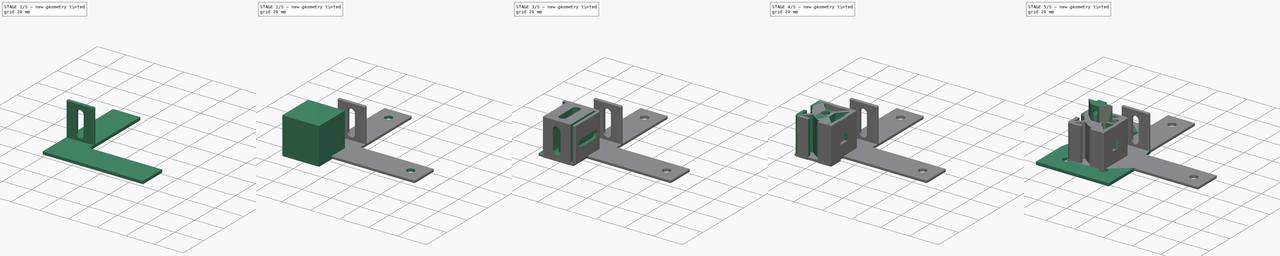
[diagram: build sequence overview — one tinted view per stage of 5, left to right]
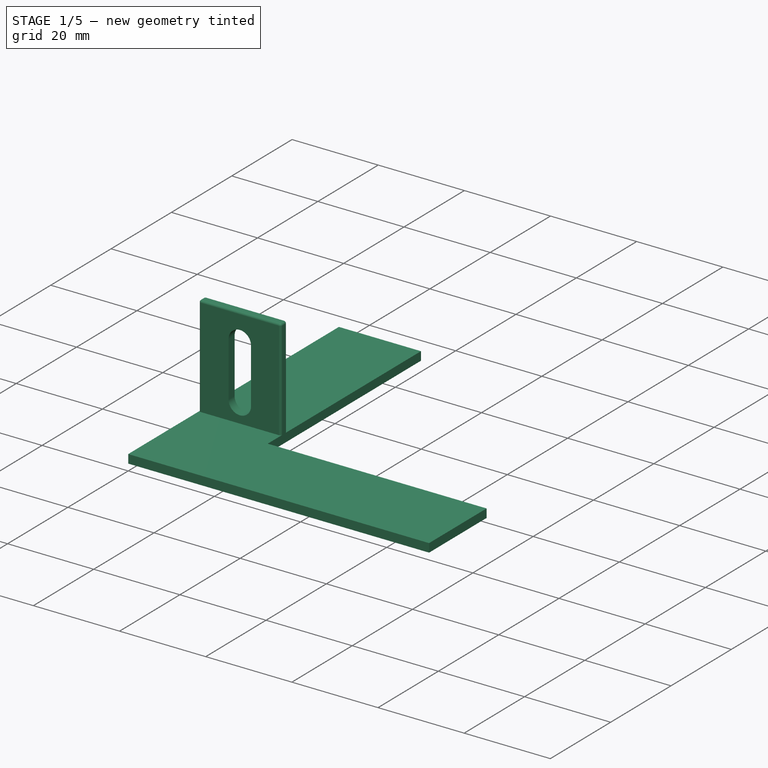
[diagram: stage 1 of 5 — iso view after this stage's code; geometry added in this stage tinted green]
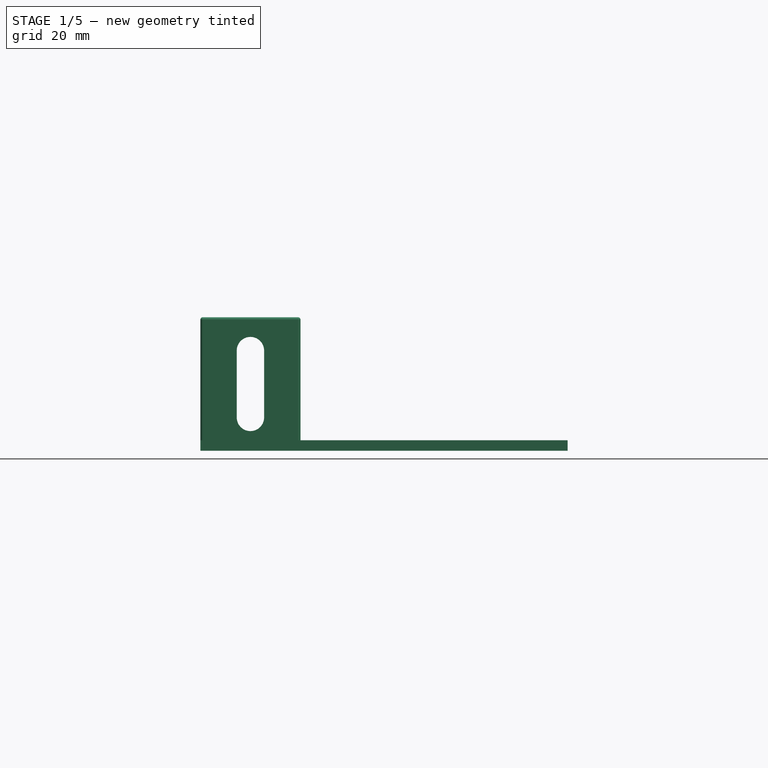
[diagram: stage 1 of 5 — front view after this stage's code; geometry added in this stage tinted green]
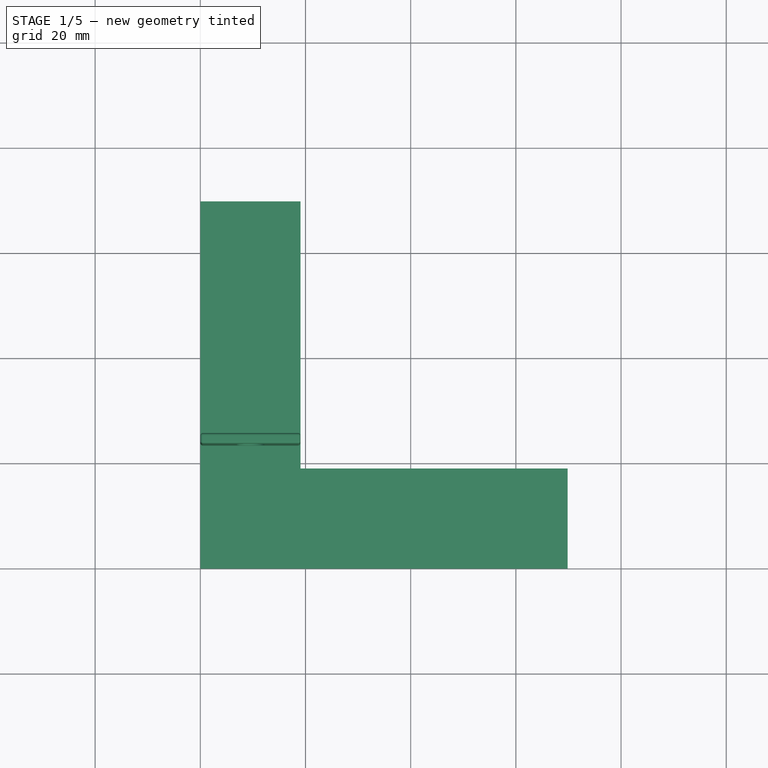
[diagram: stage 1 of 5 — top view after this stage's code; geometry added in this stage tinted green]
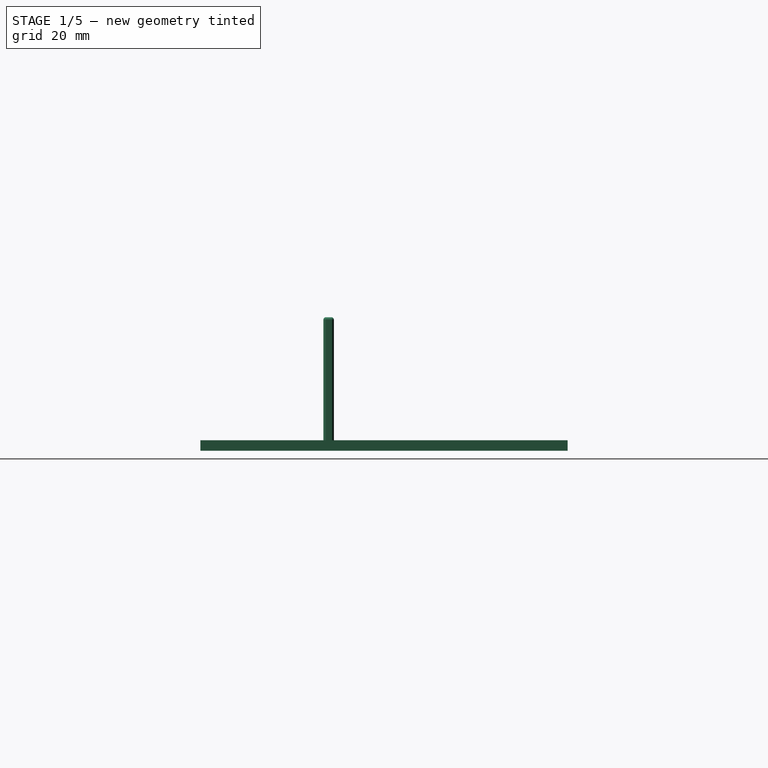
[diagram: stage 1 of 5 — right view after this stage's code; geometry added in this stage tinted green]
FCSTD DOCUMENT  (FreeCAD 2023.131R26244 +5365 (Git))
Label: T-slot structural framing
License: All rights reserved
LicenseURL: http://en.wikipedia.org/wiki/All_rights_reserved
objects: Sketcher::SketchObject×27, PartDesign::Pocket×14, PartDesign::Pad×11, PartDesign::Body×11, PartDesign::Fillet×10, PartDesign::LinearPattern×5, PartDesign::Hole×2, Spreadsheet::Sheet×1, Part::SubShapeBinder×1
note: 192 computed .brp shape members not serialized (recipe doc carries the construction recipe); baked Part::Feature solids carry a one-line shape summary decoded from their .brp

FEATURE [PartDesign::Body] Body007  label="Tri Corner Bracket"
  AutoGroupSolids = false
  ClaimAllChildren = false
  ExportMode = 0
  Group = -> [Sketch014,Pad007,Sketch015,Pocket005,Sketch016,Pocket006,Sketch017,Pocket007,Sketch018,Pocket008,Fillet005,Fillet006]
  InvalidShape = false
  Origin = -> Origin007
  Tip = -> Fillet006
  TreeRank = 91
  ValidateShape = true
  _ExportChildren = -> [Pad007,Pocket005,Pocket006,Pocket007,Pocket008,Fillet005,Fillet006]
  _GroupVersion = 1
FEATURE [Sketcher::SketchObject] Sketch019  label="Standard Corner Bracket Body Sketch"
  ArcFitTolerance = 1e-06
  AttachmentSupport = -> [XY_Plane007]
  ExternalBSplineMaxDegree = 5
  ExternalBSplineTolerance = 0.0001
  FullyConstrained = true
  InternalTolerance = 1e-06
  InvalidShape = false
  MakeInternals = false
  MapMode = 5
  Support = -> [XY_Plane007]
  TreeRank = 114
  ValidateShape = true
  expr: Constraints[10] = <<Parameters>>.Length - (<<Parameters>>.Length == 1 ? <<Parameters>>.Dimensions / 8 : <<Parameters>>.Dimensions / 4)
  expr: Constraints[9] = <<Parameters>>.Dimensions
  sketch-geometry (4):
    g0: LineSegment StartX=0 StartY=0 StartZ=0 EndX=19.05 EndY=0 EndZ=0
    g1: LineSegment StartX=19.05 StartY=0 StartZ=0 EndX=19.05 EndY=25.4 EndZ=0
    g2: LineSegment StartX=19.05 StartY=25.4 StartZ=0 EndX=0 EndY=25.4 EndZ=0
    g3: LineSegment StartX=0 StartY=25.4 StartZ=0 EndX=0 EndY=0 EndZ=0
  constraints (11):
    c: Coincident(g0,g1)
    c: Coincident(g1,g2)
    c: Coincident(g2,g3)
    c: Coincident(g3,g0)
    c: Horizontal(g0)
    c: Horizontal(g2)
    c: Vertical(g1)
    c: Vertical(g3)
    c: Coincident(g0,g-1)
    c: DistanceY(g0,g2) = 25.4
    c: DistanceX(g0,g0) = 19.05
FEATURE [PartDesign::Pad] Pad008  label="Standard Corner Bracket Body"
  AddSubType = 0
  AlongSketchNormal = false
  AutoTaperInnerAngle = true
  CheckUpToFaceLimits = true
  ClaimChildren = false
  Direction = (0,0,1)
  Fit = 0
  FitJoin = 0
  InnerFit = 0
  InnerFitJoin = 0
  InvalidShape = false
  Length = 25.4
  Length2 = 100
  Linearize = true
  NewSolid = false
  Profile = -> Sketch019
  Suppress = false
  TaperInnerAngle = 0
  TaperInnerAngleRev = 0
  TreeRank = 115
  Type = 0
  ValidateShape = true
  _ProfileBasedVersion = 1
  expr: Length = <<Parameters>>.Dimensions
FEATURE [PartDesign::Body] Body009  label="Straight Plate"
  AutoGroupSolids = false
  ClaimAllChildren = false
  ExportMode = 0
  Group = -> [Sketch022,Pad009,Sketch023,Pocket011,LinearPattern,Fillet008]
  InvalidShape = false
  Origin = -> Origin009
  Tip = -> Fillet008
  TreeRank = 130
  ValidateShape = true
  _ExportChildren = -> [Pad009,Pocket011,LinearPattern,Fillet008]
  _GroupVersion = 1
FEATURE [Sketcher::SketchObject] Sketch024  label="Right Angle Plate Body Sketch"
  ArcFitTolerance = 1e-06
  AttachmentSupport = -> [XY_Plane009]
  ExternalBSplineMaxDegree = 5
  ExternalBSplineTolerance = 0.0001
  FullyConstrained = true
  InternalTolerance = 1e-06
  InvalidShape = false
  MakeInternals = false
  MapMode = 5
  Support = -> [XY_Plane009]
  TreeRank = 147
  ValidateShape = true
  expr: Constraints[11] = <<Parameters>>.Dimensions * 3 / 4
  expr: Constraints[2] = (max(2, <<Parameters>>.Length / <<Parameters>>.Dimensions) + 0.75) * <<Parameters>>.Dimensions
  expr: Constraints[5] = (max(2, <<Parameters>>.Length / <<Parameters>>.Dimensions) + 0.75) * <<Parameters>>.Dimensions
  sketch-geometry (6):
    g0: LineSegment StartX=0 StartY=0 StartZ=0 EndX=0 EndY=69.85 EndZ=0
    g1: LineSegment StartX=0 StartY=0 StartZ=0 EndX=69.85 EndY=0 EndZ=0
    g2: LineSegment StartX=69.85 StartY=0 StartZ=0 EndX=69.85 EndY=19.05 EndZ=0
    g3: LineSegment StartX=0 StartY=69.85 StartZ=0 EndX=19.05 EndY=69.85 EndZ=0
    g4: LineSegment StartX=19.05 StartY=69.85 StartZ=0 EndX=19.05 EndY=19.05 EndZ=0
    g5: LineSegment StartX=19.05 StartY=19.05 StartZ=0 EndX=69.85 EndY=19.05 EndZ=0
  constraints (17):
    c: Coincident(g0,g-1)
    c: PointOnObject(g0,g-2)
    c: DistanceY(g0,g0) = 69.85
    c: Coincident(g1,g0)
    c: PointOnObject(g1,g-1)
    c: DistanceX(g0,g1) = 69.85
    c: Coincident(g2,g1)
    c: Vertical(g2)
    c: Coincident(g3,g0)
    c: Horizontal(g3)
    c: Equal(g3,g2)
    c: DistanceX(g0,g3) = 19.05
    c: Coincident(g4,g3)
    c: Vertical(g4)
    c: Coincident(g5,g4)
    c: Horizontal(g5)
    c: Coincident(g5,g2)
FEATURE [PartDesign::Pad] Pad010  label="Right Angle Plate Body"
  AddSubType = 0
  AlongSketchNormal = false
  AutoTaperInnerAngle = true
  CheckUpToFaceLimits = true
  ClaimChildren = false
  Direction = (0,0,1)
  Fit = 0
  FitJoin = 0
  InnerFit = 0
  InnerFitJoin = 0
  InvalidShape = false
  Length = 2
  Length2 = 100
  Linearize = true
  NewSolid = false
  Profile = -> Sketch024
  Suppress = false
  TaperInnerAngle = 0
  TaperInnerAngleRev = 0
  TreeRank = 148
  Type = 0
  ValidateShape = true
  _ProfileBasedVersion = 1
FEATURE [Part::SubShapeBinder] Import  label="Import(Standard Corner Bracket Body)"
  BindCopyOnChange = 0
  BindMode = 0
  ClaimChildren = false
  Context = -> Body010 [Import.]
  EdgeTolerance = 1e-06
  FillStyle = 0
  Fuse = false
  InvalidShape = false
  MakeFace = false
  MergeEdges = true
  OffsetFill = false
  OffsetIntersection = false
  OffsetJoinType = 0
  OffsetOpenResult = false
  Outline = false
  PartialLoad = false
  Relative = true
  SplitEdges = false
  Support = -> [Body008[Pad008.]]
  TightBound = false
  TreeRank = 154
  ValidateShape = true
  _Version = 8
FEATURE [PartDesign::Body] Body010  label="Right Angle Plate"
  AutoGroupSolids = false
  ClaimAllChildren = false
  ExportMode = 0
  Group = -> [Sketch024,Pad010,Sketch025,Pocket012,LinearPattern002,LinearPattern001,Fillet009,Import]
  InvalidShape = false
  Origin = -> Origin010
  Tip = -> Fillet009
  TreeRank = 146
  ValidateShape = true
  _ExportChildren = -> [Pad010,Pocket012,LinearPattern002,LinearPattern001,Fillet009,Import]
  _GroupVersion = 1
FEATURE [Sketcher::SketchObject] Sketch026  label="Standard Corner Bracket Cutout Sketch"
  ArcFitTolerance = 1e-06
  AttachmentSupport = -> [Pad008]
  ExternalBSplineMaxDegree = 5
  ExternalBSplineTolerance = 0.0001
  FullyConstrained = true
  InternalTolerance = 1e-06
  InvalidShape = false
  MakeInternals = false
  MapMode = 5
  Placement = pos=(0,0,0) rot=(0.57735,-0.57735,-0.57735;2.0944rad)
  Support = -> [Pad008]
  TreeRank = 155
  ValidateShape = true
  expr: Constraints[10] = <<Parameters>>.Dimensions - 2
  expr: Constraints[11] = <<Parameters>>.Dimensions - 2
  sketch-geometry (4):
    g0: LineSegment StartX=0 StartY=2 StartZ=0 EndX=-23.4 EndY=2 EndZ=0
    g1: LineSegment StartX=-23.4 StartY=2 StartZ=0 EndX=-23.4 EndY=25.4 EndZ=0
    g2: LineSegment StartX=-23.4 StartY=25.4 StartZ=0 EndX=0 EndY=25.4 EndZ=0
    g3: LineSegment StartX=0 StartY=25.4 StartZ=0 EndX=0 EndY=2 EndZ=0
  constraints (12):
    c: Coincident(g0,g1)
    c: Coincident(g1,g2)
    c: Coincident(g2,g3)
    c: Coincident(g3,g0)
    c: Horizontal(g0)
    c: Horizontal(g2)
    c: Vertical(g1)
    c: Vertical(g3)
    c: PointOnObject(g0,g-2)
    c: DistanceY(g-1,g0) = 2
    c: DistanceY(g0,g2) = 23.4
    c: DistanceX(g1,g2) = 23.4
FEATURE [PartDesign::Pocket] Pocket013  label="Standard Corner Bracket Cutout"
  AddSubType = 1
  AutoTaperInnerAngle = true
  BaseFeature = -> Pad008
  CheckUpToFaceLimits = true
  ClaimChildren = false
  Fit = 0
  FitJoin = 0
  InnerFit = 0
  InnerFitJoin = 0
  InvalidShape = false
  Length = 5
  Length2 = 100
  Linearize = true
  NewSolid = false
  Profile = -> Sketch026
  Suppress = false
  TaperInnerAngle = 0
  TaperInnerAngleRev = 0
  TreeRank = 156
  Type = 1
  ValidateShape = true
  _ProfileBasedVersion = 1
  _Version = 1
FEATURE [Sketcher::SketchObject] Sketch027  label="Standard Corner Bracket Horizontal Hole Sketch"
  ArcFitTolerance = 1e-06
  AttachmentSupport = -> [Pocket013]
  ExternalBSplineMaxDegree = 5
  ExternalBSplineTolerance = 0.0001
  FullyConstrained = true
  InternalTolerance = 1e-06
  InvalidShape = false
  MakeInternals = false
  MapMode = 5
  Placement = pos=(0,0,2) rot=(0,0,1;0rad)
  Support = -> [Pocket013]
  TreeRank = 157
  ValidateShape = true
  expr: Constraints[5] = <<Parameters>>.Dimensions / 4
  expr: Constraints[6] = <<Parameters>>.Dimensions / 4 * 3
  expr: Constraints[7] = <<Parameters>>.Dimensions * 3 / 8
  expr: Constraints[8] = <<Parameters>>.Dimensions * 3 / 8
  expr: Constraints[9] = <<Parameters>>.Hole_Diameter
  sketch-geometry (4):
    g0: ArcOfCircle CenterX=9.525 CenterY=6.35 CenterZ=0 NormalX=0 NormalY=0 NormalZ=1 AngleXU=0 Radius=2.6035 StartAngle=3.14159 EndAngle=6.28319
    g1: ArcOfCircle CenterX=9.525 CenterY=19.05 CenterZ=0 NormalX=0 NormalY=0 NormalZ=1 AngleXU=0 Radius=2.6035 StartAngle=-9e-16 EndAngle=3.14159
    g2: LineSegment StartX=12.1285 StartY=6.35 StartZ=0 EndX=12.1285 EndY=19.05 EndZ=0
    g3: LineSegment StartX=6.9215 StartY=19.05 StartZ=0 EndX=6.9215 EndY=6.35 EndZ=0
  constraints (10):
    c: Tangent(g0,g2) = -1.5708
    c: Tangent(g2,g1) = -1.5708
    c: Tangent(g1,g3) = -1.5708
    c: Tangent(g3,g0) = -1.5708
    c: Equal(g0,g1)
    c: DistanceY(g-1,g0) = 6.35
    c: DistanceY(g-1,g1) = 19.05
    c: DistanceX(g-1,g0) = 9.525
    c: DistanceX(g-1,g1) = 9.525
    c: DistanceX(g1,g1) = 5.207
FEATURE [PartDesign::Pocket] Pocket014  label="Standard Corner Bracket Horizontal Hole"
  AddSubType = 1
  AutoTaperInnerAngle = true
  BaseFeature = -> Pocket013
  CheckUpToFaceLimits = true
  ClaimChildren = false
  Fit = 0
  FitJoin = 0
  InnerFit = 0
  InnerFitJoin = 0
  InvalidShape = false
  Length = 5
  Length2 = 100
  Linearize = true
  NewSolid = false
  Profile = -> Sketch027
  Suppress = false
  TaperInnerAngle = 0
  TaperInnerAngleRev = 0
  TreeRank = 158
  Type = 1
  ValidateShape = true
  _ProfileBasedVersion = 1
  _Version = 1
FEATURE [PartDesign::LinearPattern] LinearPattern003  label="Standard Corner Bracket Horizontal Hole Pattern"
  AddSubType = 0
  BaseFeature = -> Pocket014
  CopyShape = false
  Direction = -> Sketch027 [H_Axis]
  InvalidShape = false
  Length = 0.1
  NewSolid = false
  Occurrences = 1
  OriginalSubs = -> [Pocket014]
  Originals = -> [Pocket014]
  ParallelTransform = true
  SubTransform = true
  Suppress = false
  TreeRank = 159
  ValidateShape = true
  _Version = 3
  expr: Length = max(0.1, (<<Parameters>>.Length / <<Parameters>>.Dimensions - 1) * <<Parameters>>.Dimensions)
  expr: Occurrences = <<Parameters>>.Length / <<Parameters>>.Dimensions
FEATURE [Sketcher::SketchObject] Sketch028  label="Standard Corner Bracket Vertical Hole Sketch"
  ArcFitTolerance = 1e-06
  AttachmentSupport = -> [LinearPattern003]
  ExternalBSplineMaxDegree = 5
  ExternalBSplineTolerance = 0.0001
  FullyConstrained = true
  InternalTolerance = 1e-06
  InvalidShape = false
  MakeInternals = false
  MapMode = 5
  Placement = pos=(0,23.4,0) rot=(1,0,0;1.5708rad)
  Support = -> [LinearPattern003]
  TreeRank = 160
  ValidateShape = true
  expr: Constraints[5] = <<Parameters>>.Dimensions * 3 / 8
  expr: Constraints[6] = <<Parameters>>.Dimensions * 3 / 8
  expr: Constraints[7] = <<Parameters>>.Hole_Diameter
  expr: Constraints[8] = <<Parameters>>.Dimensions / 4
  expr: Constraints[9] = <<Parameters>>.Dimensions / 4 * 3
  sketch-geometry (4):
    g0: ArcOfCircle CenterX=9.525 CenterY=19.05 CenterZ=0 NormalX=0 NormalY=0 NormalZ=1 AngleXU=0 Radius=2.6035 StartAngle=-5.3e-15 EndAngle=3.14159
    g1: ArcOfCircle CenterX=9.525 CenterY=6.35 CenterZ=0 NormalX=0 NormalY=0 NormalZ=1 AngleXU=0 Radius=2.6035 StartAngle=3.14159 EndAngle=6.28319
    g2: LineSegment StartX=6.9215 StartY=19.05 StartZ=0 EndX=6.9215 EndY=6.35 EndZ=0
    g3: LineSegment StartX=12.1285 StartY=6.35 StartZ=0 EndX=12.1285 EndY=19.05 EndZ=0
  constraints (10):
    c: Tangent(g0,g2) = -1.5708
    c: Tangent(g2,g1) = -1.5708
    c: Tangent(g1,g3) = -1.5708
    c: Tangent(g3,g0) = -1.5708
    c: Equal(g0,g1)
    c: DistanceX(g-1,g1) = 9.525
    c: DistanceX(g-1,g0) = 9.525
    c: DistanceX(g0,g0) = 5.207
    c: DistanceY(g-1,g1) = 6.35
    c: DistanceY(g-1,g0) = 19.05
FEATURE [PartDesign::Pocket] Pocket015  label="Standard Corner Bracket Horizontal Hole001"
  AddSubType = 1
  AutoTaperInnerAngle = true
  BaseFeature = -> LinearPattern003
  CheckUpToFaceLimits = true
  ClaimChildren = false
  Fit = 0
  FitJoin = 0
  InnerFit = 0
  InnerFitJoin = 0
  InvalidShape = false
  Length = 5
  Length2 = 100
  Linearize = true
  NewSolid = false
  Profile = -> Sketch028
  Suppress = false
  TaperInnerAngle = 0
  TaperInnerAngleRev = 0
  TreeRank = 161
  Type = 1
  ValidateShape = true
  _ProfileBasedVersion = 1
  _Version = 1
FEATURE [PartDesign::LinearPattern] LinearPattern004
  AddSubType = 0
  BaseFeature = -> Pocket015
  CopyShape = false
  Direction = -> Sketch028 [H_Axis]
  InvalidShape = false
  Length = 0.1
  NewSolid = false
  Occurrences = 1
  OriginalSubs = -> [Pocket015]
  Originals = -> [Pocket015]
  ParallelTransform = true
  SubTransform = true
  Suppress = false
  TreeRank = 162
  ValidateShape = true
  _Version = 3
  expr: Length = max(0.1, (<<Parameters>>.Length / <<Parameters>>.Dimensions - 1) * <<Parameters>>.Dimensions)
  expr: Occurrences = <<Parameters>>.Length / <<Parameters>>.Dimensions
FEATURE [PartDesign::Fillet] Fillet010  label="Standard Corner Bracket Minor Fillet"
  AddSubType = 0
  Base = -> LinearPattern004 [Face1,Face5,Face3,Face11,Edge7]
  BaseFeature = -> LinearPattern004
  InvalidShape = false
  NewSolid = false
  Radius = 0.5
  SupportTransform = false
  Suppress = false
  TreeRank = 163
  ValidateShape = true
FEATURE [PartDesign::Body] Body008  label="Standard Corner Bracket"
  AutoGroupSolids = false
  ClaimAllChildren = false
  ExportMode = 0
  Group = -> [Sketch019,Pad008,Sketch026,Pocket013,Sketch027,Pocket014,LinearPattern003,Sketch028,Pocket015,LinearPattern004,Fillet010]
  InvalidShape = false
  Origin = -> Origin008
  Tip = -> Fillet010
  TreeRank = 69
  ValidateShape = true
  _ExportChildren = -> [Pad008,Pocket013,Pocket014,LinearPattern003,Pocket015,LinearPattern004,Fillet010]
  _GroupVersion = 1
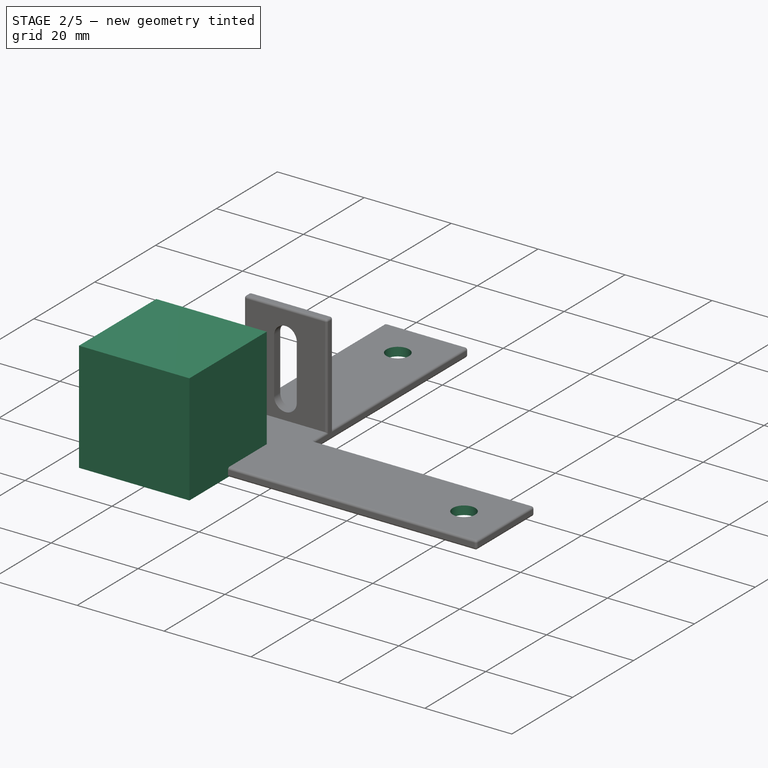
[diagram: stage 2 of 5 — iso view after this stage's code; geometry added in this stage tinted green]
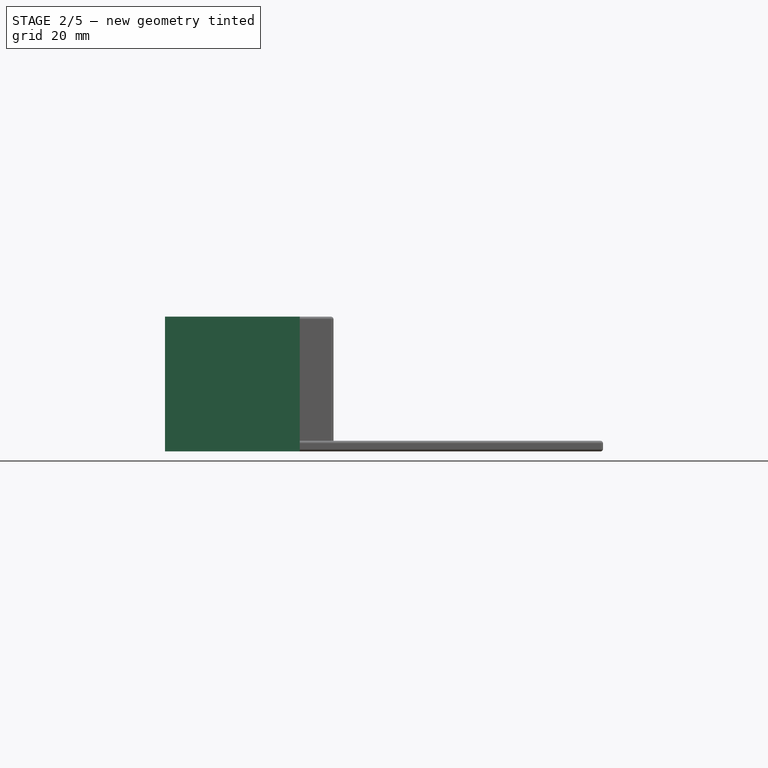
[diagram: stage 2 of 5 — front view after this stage's code; geometry added in this stage tinted green]
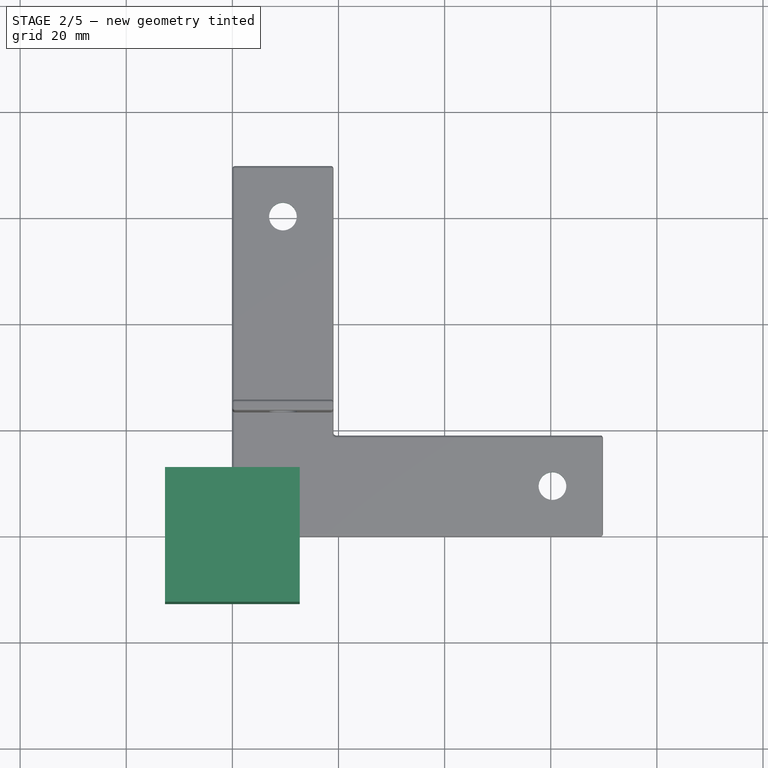
[diagram: stage 2 of 5 — top view after this stage's code; geometry added in this stage tinted green]
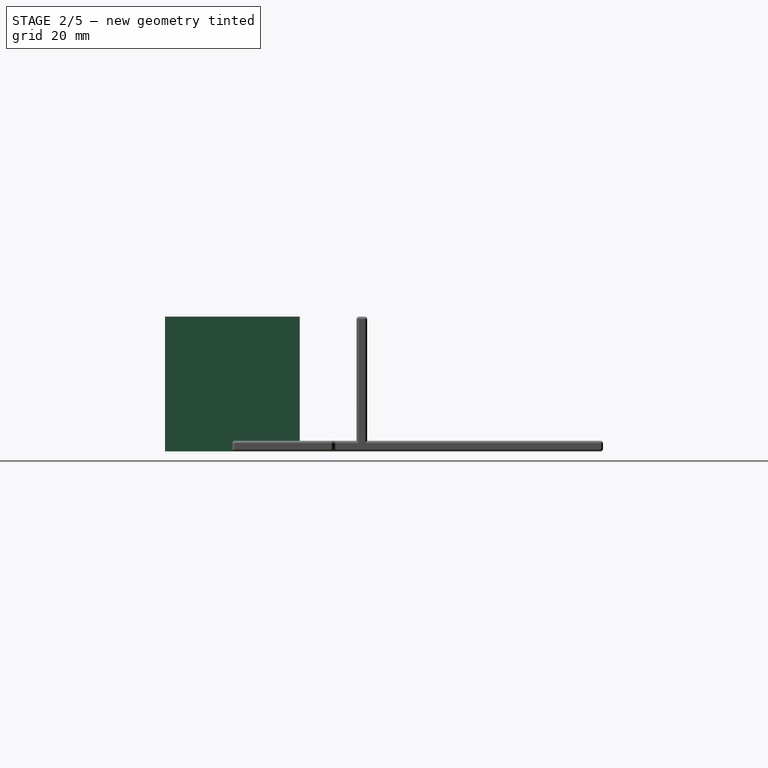
[diagram: stage 2 of 5 — right view after this stage's code; geometry added in this stage tinted green]
FEATURE [PartDesign::Body] Body006  label="Supported Corner Bracket"
  AutoGroupSolids = false
  ClaimAllChildren = false
  ExportMode = 0
  Group = -> [Sketch010,Pad006,Sketch011,Pocket002,Sketch012,Pocket003,Sketch013,Pocket004,Fillet003,Fillet004]
  InvalidShape = false
  Origin = -> Origin006
  Tip = -> Fillet004
  TreeRank = 70
  ValidateShape = true
  _ExportChildren = -> [Pad006,Pocket002,Pocket003,Pocket004,Fillet003,Fillet004]
  _GroupVersion = 1
FEATURE [Sketcher::SketchObject] Sketch014  label="Tri Corner Bracket Sketch"
  ArcFitTolerance = 1e-06
  AttachmentSupport = -> [XY_Plane006]
  ExternalBSplineMaxDegree = 5
  ExternalBSplineTolerance = 0.0001
  FullyConstrained = true
  InternalTolerance = 1e-06
  InvalidShape = false
  MakeInternals = false
  MapMode = 5
  Support = -> [XY_Plane006]
  TreeRank = 92
  ValidateShape = true
  expr: Constraints[11] = <<Parameters>>.Dimensions
  sketch-geometry (5):
    g0: LineSegment StartX=12.7 StartY=-12.7 StartZ=0 EndX=12.7 EndY=12.7 EndZ=0
    g1: LineSegment StartX=12.7 StartY=12.7 StartZ=0 EndX=-12.7 EndY=12.7 EndZ=0
    g2: LineSegment StartX=-12.7 StartY=12.7 StartZ=0 EndX=-12.7 EndY=-12.7 EndZ=0
    g3: LineSegment StartX=-12.7 StartY=-12.7 StartZ=0 EndX=12.7 EndY=-12.7 EndZ=0
    g4: GeomPoint [constr] X=0 Y=-8e-16 Z=0
  constraints (12):
    c: Coincident(g0,g1)
    c: Coincident(g1,g2)
    c: Coincident(g2,g3)
    c: Coincident(g3,g0)
    c: Horizontal(g1)
    c: Horizontal(g3)
    c: Vertical(g0)
    c: Vertical(g2)
    c: Symmetric(g1,g0,g4)
    c: Coincident(g4,g-1)
    c: Equal(g1,g0)
    c: DistanceX(g1,g0) = 25.4
FEATURE [PartDesign::Pad] Pad007  label="Tri Corner Bracket Body"
  AddSubType = 0
  AlongSketchNormal = false
  AutoTaperInnerAngle = true
  CheckUpToFaceLimits = true
  ClaimChildren = false
  Direction = (0,0,1)
  Fit = 0
  FitJoin = 0
  InnerFit = 0
  InnerFitJoin = 0
  InvalidShape = false
  Length = 25.4
  Length2 = 100
  Linearize = true
  NewSolid = false
  Profile = -> Sketch014
  Suppress = false
  TaperInnerAngle = 0
  TaperInnerAngleRev = 0
  TreeRank = 93
  Type = 0
  ValidateShape = true
  _ProfileBasedVersion = 1
  expr: Length = <<Parameters>>.Dimensions
FEATURE [Sketcher::SketchObject] Sketch022  label="Straight Plate Body Skeetch"
  ArcFitTolerance = 1e-06
  AttachmentSupport = -> [XY_Plane008]
  ExternalBSplineMaxDegree = 5
  ExternalBSplineTolerance = 0.0001
  FullyConstrained = true
  InternalTolerance = 1e-06
  InvalidShape = false
  MakeInternals = false
  MapMode = 5
  Support = -> [XY_Plane008]
  TreeRank = 131
  ValidateShape = true
  expr: Constraints[10] = <<Parameters>>.Dimensions * 3 / 4
  expr: Constraints[9] = (max(2, <<Parameters>>.Length / <<Parameters>>.Dimensions) + 0.75) * <<Parameters>>.Dimensions
  sketch-geometry (4):
    g0: LineSegment StartX=0 StartY=0 StartZ=0 EndX=19.05 EndY=0 EndZ=0
    g1: LineSegment StartX=19.05 StartY=0 StartZ=0 EndX=19.05 EndY=69.85 EndZ=0
    g2: LineSegment StartX=19.05 StartY=69.85 StartZ=0 EndX=0 EndY=69.85 EndZ=0
    g3: LineSegment StartX=0 StartY=69.85 StartZ=0 EndX=0 EndY=0 EndZ=0
  constraints (11):
    c: Coincident(g0,g1)
    c: Coincident(g1,g2)
    c: Coincident(g2,g3)
    c: Coincident(g3,g0)
    c: Horizontal(g0)
    c: Horizontal(g2)
    c: Vertical(g1)
    c: Vertical(g3)
    c: Coincident(g0,g-1)
    c: DistanceY(g0,g1) = 69.85
    c: DistanceX(g2,g1) = 19.05
FEATURE [PartDesign::Pad] Pad009  label="Straight Plate Body"
  AddSubType = 0
  AlongSketchNormal = false
  AutoTaperInnerAngle = true
  CheckUpToFaceLimits = true
  ClaimChildren = false
  Direction = (0,0,1)
  Fit = 0
  FitJoin = 0
  InnerFit = 0
  InnerFitJoin = 0
  InvalidShape = false
  Length = 2
  Length2 = 100
  Linearize = true
  NewSolid = false
  Profile = -> Sketch022
  Suppress = false
  TaperInnerAngle = 0
  TaperInnerAngleRev = 0
  TreeRank = 132
  Type = 0
  ValidateShape = true
  _ProfileBasedVersion = 1
FEATURE [Sketcher::SketchObject] Sketch023  label="Straight Plate Holes Sketch"
  ArcFitTolerance = 1e-06
  AttachmentSupport = -> [Pad009]
  ExternalBSplineMaxDegree = 5
  ExternalBSplineTolerance = 0.0001
  FullyConstrained = true
  InternalTolerance = 1e-06
  InvalidShape = false
  MakeInternals = false
  MapMode = 5
  Placement = pos=(0,0,2) rot=(0,0,1;0rad)
  Support = -> [Pad009]
  TreeRank = 133
  ValidateShape = true
  expr: Constraints[0] = <<Parameters>>.Hole_Diameter
  expr: Constraints[1] = <<Parameters>>.Dimensions * 3 / 8
  expr: Constraints[2] = <<Parameters>>.Dimensions * 3 / 8
  sketch-geometry (1):
    g0: Circle CenterX=9.525 CenterY=9.525 CenterZ=0 NormalX=0 NormalY=0 NormalZ=1 AngleXU=0 Radius=2.6035
  constraints (3):
    c: Diameter(g0) = 5.207
    c: DistanceX(g-1,g0) = 9.525
    c: DistanceY(g-1,g0) = 9.525
FEATURE [PartDesign::Pocket] Pocket011  label="Straight Plate Holes"
  AddSubType = 1
  AutoTaperInnerAngle = true
  BaseFeature = -> Pad009
  CheckUpToFaceLimits = true
  ClaimChildren = false
  Fit = 0
  FitJoin = 0
  InnerFit = 0
  InnerFitJoin = 0
  InvalidShape = false
  Length = 5
  Length2 = 100
  Linearize = true
  NewSolid = false
  Profile = -> Sketch023
  Suppress = false
  TaperInnerAngle = 0
  TaperInnerAngleRev = 0
  TreeRank = 134
  Type = 1
  ValidateShape = true
  _ProfileBasedVersion = 1
  _Version = 1
FEATURE [PartDesign::LinearPattern] LinearPattern  label="Straight Plate Holes Pattern"
  AddSubType = 0
  BaseFeature = -> Pocket011
  CopyShape = false
  Direction = -> Sketch023 [V_Axis]
  InvalidShape = false
  Length = 50.8
  NewSolid = false
  Occurrences = 2
  OriginalSubs = -> [Pocket011]
  Originals = -> [Pocket011]
  ParallelTransform = true
  SubTransform = true
  Suppress = false
  TreeRank = 135
  ValidateShape = true
  _Version = 3
  expr: Length = <<Parameters>>.Dimensions * max(2, <<Parameters>>.Length / <<Parameters>>.Dimensions)
  expr: Occurrences = max(2, <<Parameters>>.Length / <<Parameters>>.Dimensions)
FEATURE [PartDesign::Fillet] Fillet008  label="Straight Plate Minor Fillet"
  AddSubType = 0
  Base = -> LinearPattern [Face1,Face3,Face2,Face6]
  BaseFeature = -> LinearPattern
  InvalidShape = false
  NewSolid = false
  Radius = 0.5
  SupportTransform = false
  Suppress = false
  TreeRank = 136
  ValidateShape = true
FEATURE [Sketcher::SketchObject] Sketch025  label="Right Angle Plate Holes Sketch"
  ArcFitTolerance = 1e-06
  AttachmentSupport = -> [Pad010]
  ExternalBSplineMaxDegree = 5
  ExternalBSplineTolerance = 0.0001
  FullyConstrained = true
  InternalTolerance = 1e-06
  InvalidShape = false
  MakeInternals = false
  MapMode = 5
  Placement = pos=(0,0,2) rot=(0,0,1;0rad)
  Support = -> [Pad010]
  TreeRank = 149
  ValidateShape = true
  expr: Constraints[0] = <<Parameters>>.Dimensions * 3 / 8
  expr: Constraints[1] = <<Parameters>>.Dimensions * 3 / 8
  expr: Constraints[2] = <<Parameters>>.Hole_Diameter
  sketch-geometry (1):
    g0: Circle CenterX=9.525 CenterY=9.525 CenterZ=0 NormalX=0 NormalY=0 NormalZ=1 AngleXU=0 Radius=2.6035
  constraints (3):
    c: DistanceX(g-1,g0) = 9.525
    c: DistanceY(g-1,g0) = 9.525
    c: Diameter(g0) = 5.207
FEATURE [PartDesign::Pocket] Pocket012  label="Right Angle Plate Holes"
  AddSubType = 1
  AutoTaperInnerAngle = true
  BaseFeature = -> Pad010
  CheckUpToFaceLimits = true
  ClaimChildren = false
  Fit = 0
  FitJoin = 0
  InnerFit = 0
  InnerFitJoin = 0
  InvalidShape = false
  Length = 5
  Length2 = 100
  Linearize = true
  NewSolid = false
  Profile = -> Sketch025
  Suppress = false
  TaperInnerAngle = 0
  TaperInnerAngleRev = 0
  TreeRank = 150
  Type = 1
  ValidateShape = true
  _ProfileBasedVersion = 1
  _Version = 1
FEATURE [PartDesign::LinearPattern] LinearPattern002  label="Right Angle Plate Vertical Hole Pattern"
  AddSubType = 0
  BaseFeature = -> Pocket012
  CopyShape = false
  Direction = -> Sketch025 [V_Axis]
  InvalidShape = false
  Length = 50.8
  NewSolid = false
  Occurrences = 2
  OriginalSubs = -> [Pocket012]
  Originals = -> [Pocket012]
  ParallelTransform = true
  SubTransform = true
  Suppress = false
  TreeRank = 152
  ValidateShape = true
  _Version = 3
  expr: Length = <<Parameters>>.Dimensions * max(2, <<Parameters>>.Length / <<Parameters>>.Dimensions)
  expr: Occurrences = max(2, <<Parameters>>.Length / <<Parameters>>.Dimensions)
FEATURE [PartDesign::LinearPattern] LinearPattern001  label="Right Angle Plate Horizontal Hole Pattern"
  AddSubType = 0
  BaseFeature = -> LinearPattern002
  CopyShape = false
  Direction = -> Sketch025 [H_Axis]
  InvalidShape = false
  Length = 50.8
  NewSolid = false
  Occurrences = 2
  OriginalSubs = -> [Pocket012]
  Originals = -> [Pocket012]
  ParallelTransform = true
  SubTransform = true
  Suppress = false
  TreeRank = 151
  ValidateShape = true
  _Version = 3
  expr: Length = <<Parameters>>.Dimensions * max(2, <<Parameters>>.Length / <<Parameters>>.Dimensions)
  expr: Occurrences = max(2, <<Parameters>>.Length / <<Parameters>>.Dimensions)
FEATURE [PartDesign::Fillet] Fillet009  label="Right Angle Plate Minor Fillet"
  AddSubType = 0
  Base = -> LinearPattern001 [Face2,Face6,Face8,Face7,Face3,Face1,Edge1,Edge24,Edge2,Edge8,Edge23,Edge5]
  BaseFeature = -> LinearPattern001
  InvalidShape = false
  NewSolid = false
  Radius = 0.5
  SupportTransform = false
  Suppress = false
  TreeRank = 153
  ValidateShape = true
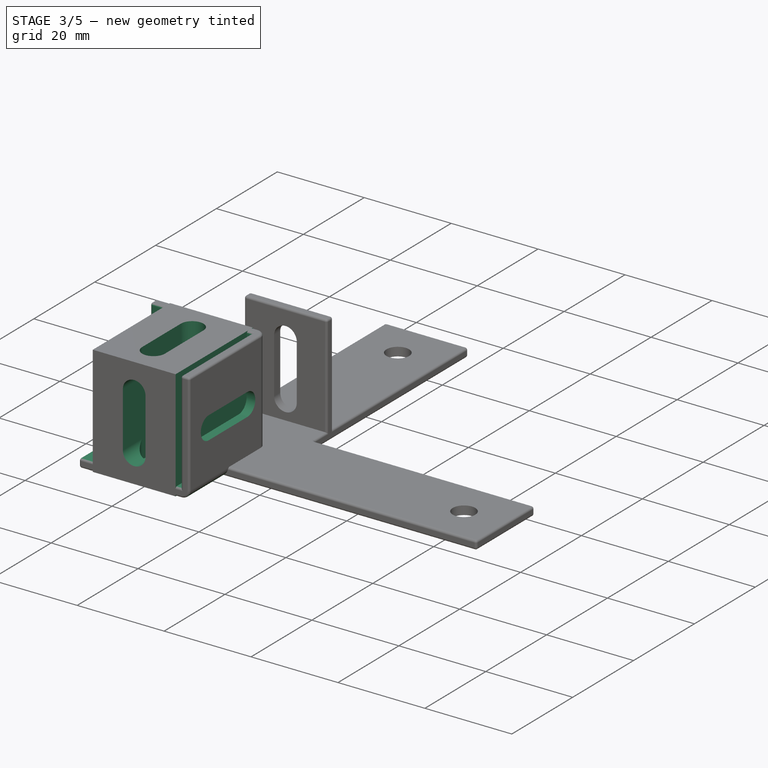
[diagram: stage 3 of 5 — iso view after this stage's code; geometry added in this stage tinted green]
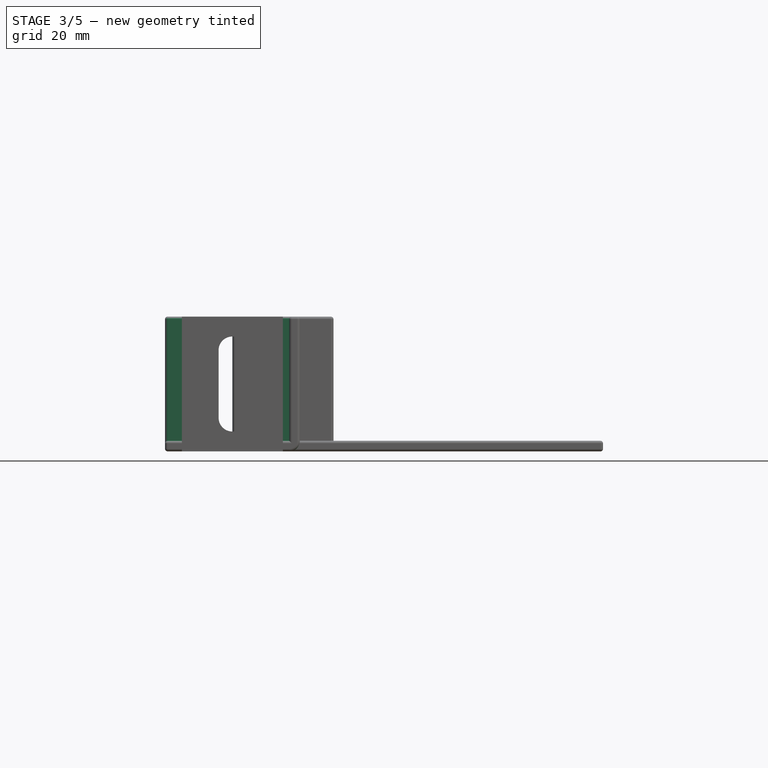
[diagram: stage 3 of 5 — front view after this stage's code; geometry added in this stage tinted green]
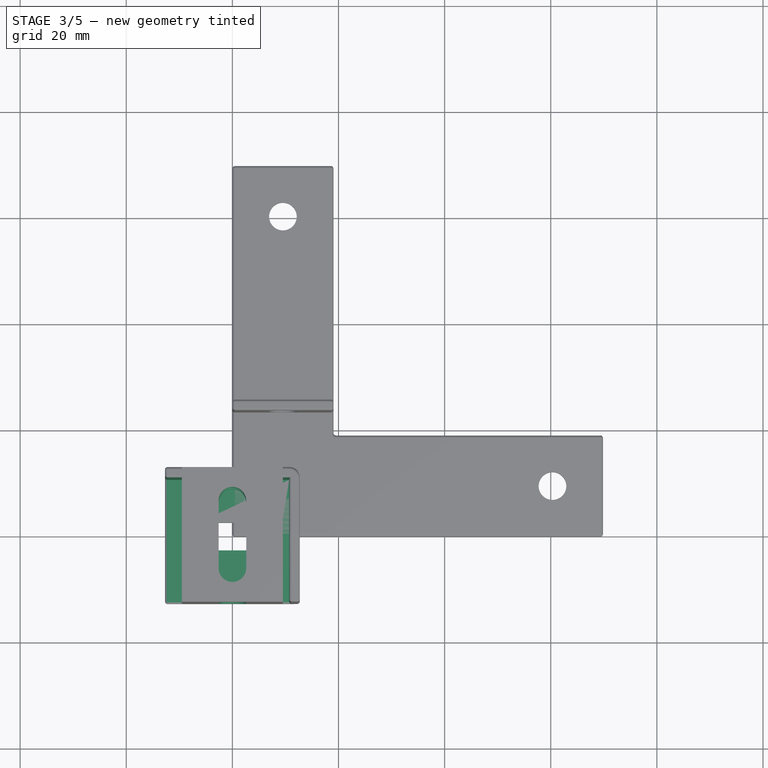
[diagram: stage 3 of 5 — top view after this stage's code; geometry added in this stage tinted green]
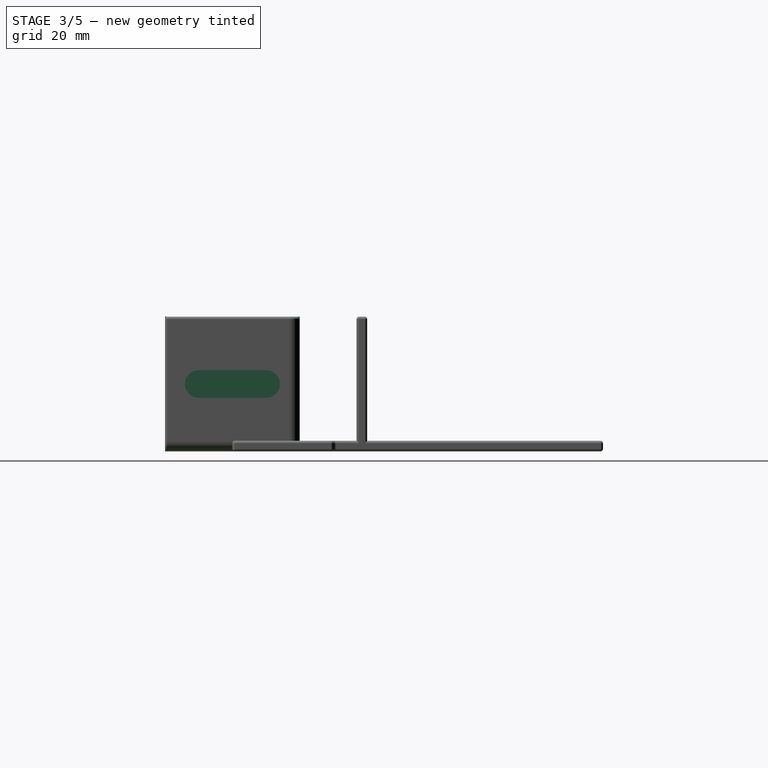
[diagram: stage 3 of 5 — right view after this stage's code; geometry added in this stage tinted green]
FEATURE [PartDesign::Body] Body  label="1x1 Profile"
  AutoGroupSolids = false
  ClaimAllChildren = false
  ExportMode = 0
  Group = -> [Sketch,Pad,Sketch001,Pocket,Fillet002]
  InvalidShape = false
  Origin = -> Origin
  Tip = -> Fillet002
  TreeRank = 11
  ValidateShape = true
  _ExportChildren = -> [Pad,Pocket,Fillet002]
  _GroupVersion = 1
FEATURE [Sketcher::SketchObject] Sketch010  label="Supported Corner Bracket Sketch"
  ArcFitTolerance = 1e-06
  AttachmentSupport = -> [XY_Plane005]
  ExternalBSplineMaxDegree = 5
  ExternalBSplineTolerance = 0.0001
  FullyConstrained = true
  InternalTolerance = 1e-06
  InvalidShape = false
  MakeInternals = false
  MapMode = 5
  Support = -> [XY_Plane005]
  TreeRank = 71
  ValidateShape = true
  expr: Constraints[10] = <<Parameters>>.Dimensions * 3 / 4
  expr: Constraints[11] = <<Parameters>>.Dimensions
  expr: Constraints[19] = <<Parameters>>.Dimensions / 4
  expr: Constraints[20] = <<Parameters>>.Dimensions / 4
  expr: Constraints[21] = <<Parameters>>.Hole_Diameter
  sketch-geometry (9):
    g0: LineSegment StartX=9.525 StartY=-12.7 StartZ=0 EndX=9.525 EndY=12.7 EndZ=0
    g1: LineSegment StartX=9.525 StartY=12.7 StartZ=0 EndX=-9.525 EndY=12.7 EndZ=0
    g2: LineSegment StartX=-9.525 StartY=12.7 StartZ=0 EndX=-9.525 EndY=-12.7 EndZ=0
    g3: LineSegment StartX=-9.525 StartY=-12.7 StartZ=0 EndX=9.525 EndY=-12.7 EndZ=0
    g4: GeomPoint [constr] X=0 Y=0 Z=0
    g5: ArcOfCircle CenterX=0 CenterY=6.35 CenterZ=0 NormalX=0 NormalY=0 NormalZ=1 AngleXU=0 Radius=2.6035 StartAngle=0 EndAngle=3.14159
    g6: ArcOfCircle CenterX=0 CenterY=-6.35 CenterZ=0 NormalX=0 NormalY=0 NormalZ=1 AngleXU=0 Radius=2.6035 StartAngle=3.14159 EndAngle=6.28319
    g7: LineSegment StartX=-2.6035 StartY=6.35 StartZ=0 EndX=-2.6035 EndY=-6.35 EndZ=0
    g8: LineSegment StartX=2.6035 StartY=-6.35 StartZ=0 EndX=2.6035 EndY=6.35 EndZ=0
  constraints (22):
    c: Coincident(g0,g1)
    c: Coincident(g1,g2)
    c: Coincident(g2,g3)
    c: Coincident(g3,g0)
    c: Horizontal(g1)
    c: Horizontal(g3)
    c: Vertical(g0)
    c: Vertical(g2)
    c: Symmetric(g1,g0,g4)
    c: Coincident(g4,g-1)
    c: DistanceX(g1,g0) = 19.05
    c: DistanceY(g0,g0) = 25.4
    c: Tangent(g5,g7) = -1.5708
    c: Tangent(g7,g6) = -1.5708
    c: Tangent(g6,g8) = -1.5708
    c: Tangent(g8,g5) = -1.5708
    c: Equal(g5,g6)
    c: PointOnObject(g5,g-2)
    c: PointOnObject(g6,g-2)
    c: DistanceY(g5,g0) = 6.35
    c: DistanceY(g0,g6) = 6.35
    c: DistanceX(g6,g6) = 5.207
FEATURE [PartDesign::Pad] Pad006  label="Supported Corner Bracket Body"
  AddSubType = 0
  AlongSketchNormal = false
  AutoTaperInnerAngle = true
  CheckUpToFaceLimits = true
  ClaimChildren = false
  Direction = (0,0,1)
  Fit = 0
  FitJoin = 0
  InnerFit = 0
  InnerFitJoin = 0
  InvalidShape = false
  Length = 25.4
  Length2 = 100
  Linearize = true
  NewSolid = false
  Profile = -> Sketch010
  Suppress = false
  TaperInnerAngle = 0
  TaperInnerAngleRev = 0
  TreeRank = 72
  Type = 0
  ValidateShape = true
  _ProfileBasedVersion = 1
  expr: Length = <<Parameters>>.Dimensions
FEATURE [Sketcher::SketchObject] Sketch011  label="Supported Corner Bracket Vertical Slot Sketch"
  ArcFitTolerance = 1e-06
  AttachmentSupport = -> [Pad006]
  ExternalBSplineMaxDegree = 5
  ExternalBSplineTolerance = 0.0001
  FullyConstrained = true
  InternalTolerance = 1e-06
  InvalidShape = false
  MakeInternals = false
  MapMode = 5
  Placement = pos=(0,-12.7,0) rot=(1,0,0;1.5708rad)
  Support = -> [Pad006]
  TreeRank = 73
  ValidateShape = true
  expr: Constraints[7] = <<Parameters>>.Dimensions / 4
  expr: Constraints[8] = <<Parameters>>.Dimensions * 3 / 4
  expr: Constraints[9] = <<Parameters>>.Hole_Diameter
  sketch-geometry (4):
    g0: ArcOfCircle CenterX=0 CenterY=19.05 CenterZ=0 NormalX=0 NormalY=0 NormalZ=1 AngleXU=0 Radius=2.6035 StartAngle=1.52e-14 EndAngle=3.14159
    g1: ArcOfCircle CenterX=0 CenterY=6.35 CenterZ=0 NormalX=0 NormalY=0 NormalZ=1 AngleXU=0 Radius=2.6035 StartAngle=3.14159 EndAngle=6.28319
    g2: LineSegment StartX=-2.6035 StartY=19.05 StartZ=0 EndX=-2.6035 EndY=6.35 EndZ=0
    g3: LineSegment StartX=2.6035 StartY=6.35 StartZ=0 EndX=2.6035 EndY=19.05 EndZ=0
  constraints (10):
    c: Tangent(g0,g2) = -1.5708
    c: Tangent(g2,g1) = -1.5708
    c: Tangent(g1,g3) = -1.5708
    c: Tangent(g3,g0) = -1.5708
    c: Equal(g0,g1)
    c: PointOnObject(g0,g-2)
    c: PointOnObject(g1,g-2)
    c: DistanceY(g-1,g1) = 6.35
    c: DistanceY(g-1,g0) = 19.05
    c: DistanceX(g0,g0) = 5.207
FEATURE [PartDesign::Pocket] Pocket002  label="Supported Corner Bracket Vertical Slot"
  AddSubType = 1
  AutoTaperInnerAngle = true
  BaseFeature = -> Pad006
  CheckUpToFaceLimits = true
  ClaimChildren = false
  Fit = 0
  FitJoin = 0
  InnerFit = 0
  InnerFitJoin = 0
  InvalidShape = false
  Length = 5
  Length2 = 100
  Linearize = true
  NewSolid = false
  Profile = -> Sketch011
  Suppress = false
  TaperInnerAngle = 0
  TaperInnerAngleRev = 0
  TreeRank = 74
  Type = 1
  ValidateShape = true
  _ProfileBasedVersion = 1
  _Version = 1
FEATURE [Sketcher::SketchObject] Sketch015  label="Tri Corner Bracket Cutout Sketch"
  ArcFitTolerance = 1e-06
  AttachmentSupport = -> [Pad007]
  ExternalBSplineMaxDegree = 5
  ExternalBSplineTolerance = 0.0001
  FullyConstrained = true
  InternalTolerance = 1e-06
  InvalidShape = false
  MakeInternals = false
  MapMode = 5
  Placement = pos=(0,0,25.4) rot=(0,0,1;0rad)
  Support = -> [Pad007]
  TreeRank = 94
  ValidateShape = true
  expr: Constraints[10] = <<Parameters>>.Dimensions / 2
  expr: Constraints[11] = <<Parameters>>.Dimensions / 2
  expr: Constraints[8] = <<Parameters>>.Dimensions - 2
  expr: Constraints[9] = <<Parameters>>.Dimensions - 2
  sketch-geometry (4):
    g0: LineSegment StartX=10.7 StartY=10.7 StartZ=0 EndX=-12.7 EndY=10.7 EndZ=0
    g1: LineSegment StartX=-12.7 StartY=10.7 StartZ=0 EndX=-12.7 EndY=-12.7 EndZ=0
    g2: LineSegment StartX=-12.7 StartY=-12.7 StartZ=0 EndX=10.7 EndY=-12.7 EndZ=0
    g3: LineSegment StartX=10.7 StartY=-12.7 StartZ=0 EndX=10.7 EndY=10.7 EndZ=0
  constraints (12):
    c: Coincident(g0,g1)
    c: Coincident(g1,g2)
    c: Coincident(g2,g3)
    c: Coincident(g3,g0)
    c: Horizontal(g0)
    c: Horizontal(g2)
    c: Vertical(g1)
    c: Vertical(g3)
    c: DistanceX(g0,g0) = 23.4
    c: DistanceY(g2,g0) = 23.4
    c: DistanceY(g2,g-1) = 12.7
    c: DistanceX(g1,g-1) = 12.7
FEATURE [PartDesign::Pocket] Pocket005  label="Tri Corner Bracket Cutout"
  AddSubType = 1
  AutoTaperInnerAngle = true
  BaseFeature = -> Pad007
  CheckUpToFaceLimits = true
  ClaimChildren = false
  Fit = 0
  FitJoin = 0
  InnerFit = 0
  InnerFitJoin = 0
  InvalidShape = false
  Length = 23.4
  Length2 = 100
  Linearize = true
  NewSolid = false
  Profile = -> Sketch015
  Suppress = false
  TaperInnerAngle = 0
  TaperInnerAngleRev = 0
  TreeRank = 95
  Type = 0
  ValidateShape = true
  _ProfileBasedVersion = 1
  _Version = 1
  expr: Length = <<Parameters>>.Dimensions - 2
FEATURE [Sketcher::SketchObject] Sketch016  label="Tri Corner Bracket Slot 1 Sketch"
  ArcFitTolerance = 1e-06
  AttachmentSupport = -> [Pocket005]
  ExternalBSplineMaxDegree = 5
  ExternalBSplineTolerance = 0.0001
  FullyConstrained = true
  InternalTolerance = 1e-06
  InvalidShape = false
  MakeInternals = false
  MapMode = 5
  Placement = pos=(0,0,2) rot=(0,0,1;0rad)
  Support = -> [Pocket005]
  TreeRank = 96
  ValidateShape = true
  expr: Constraints[7] = <<Parameters>>.Dimensions / 4
  expr: Constraints[8] = <<Parameters>>.Dimensions / 4
  expr: Constraints[9] = <<Parameters>>.Hole_Diameter
  sketch-geometry (4):
    g0: ArcOfCircle CenterX=-6.35 CenterY=0 CenterZ=0 NormalX=0 NormalY=0 NormalZ=1 AngleXU=0 Radius=2.6035 StartAngle=1.5708 EndAngle=4.71239
    g1: ArcOfCircle CenterX=6.35 CenterY=0 CenterZ=0 NormalX=0 NormalY=0 NormalZ=1 AngleXU=0 Radius=2.6035 StartAngle=4.71239 EndAngle=7.85398
    g2: LineSegment StartX=-6.35 StartY=-2.6035 StartZ=0 EndX=6.35 EndY=-2.6035 EndZ=0
    g3: LineSegment StartX=6.35 StartY=2.6035 StartZ=0 EndX=-6.35 EndY=2.6035 EndZ=0
  constraints (10):
    c: Tangent(g0,g2) = -1.5708
    c: Tangent(g2,g1) = -1.5708
    c: Tangent(g1,g3) = -1.5708
    c: Tangent(g3,g0) = -1.5708
    c: Equal(g0,g1)
    c: PointOnObject(g0,g-1)
    c: PointOnObject(g1,g-1)
    c: DistanceX(g0,g-1) = 6.35
    c: DistanceX(g-1,g1) = 6.35
    c: DistanceY(g1,g1) = 5.207
FEATURE [PartDesign::Pocket] Pocket006  label="Tri Corner Bracket Slot 1"
  AddSubType = 1
  AutoTaperInnerAngle = true
  BaseFeature = -> Pocket005
  CheckUpToFaceLimits = true
  ClaimChildren = false
  Fit = 0
  FitJoin = 0
  InnerFit = 0
  InnerFitJoin = 0
  InvalidShape = false
  Length = 5
  Length2 = 100
  Linearize = true
  NewSolid = false
  Profile = -> Sketch016
  Suppress = false
  TaperInnerAngle = 0
  TaperInnerAngleRev = 0
  TreeRank = 97
  Type = 1
  ValidateShape = true
  _ProfileBasedVersion = 1
  _Version = 1
FEATURE [Sketcher::SketchObject] Sketch017  label="Tri Corner Bracket Slot 2 Sketch"
  ArcFitTolerance = 1e-06
  AttachmentSupport = -> [Pocket006]
  ExternalBSplineMaxDegree = 5
  ExternalBSplineTolerance = 0.0001
  FullyConstrained = true
  InternalTolerance = 1e-06
  InvalidShape = false
  MakeInternals = false
  MapMode = 5
  Placement = pos=(10.7,0,0) rot=(0.57735,-0.57735,-0.57735;2.0944rad)
  Support = -> [Pocket006]
  TreeRank = 98
  ValidateShape = true
  expr: Constraints[5] = <<Parameters>>.Dimensions / 2
  expr: Constraints[6] = <<Parameters>>.Dimensions / 2
  expr: Constraints[7] = <<Parameters>>.Dimensions / 4
  expr: Constraints[8] = <<Parameters>>.Dimensions / 4
  expr: Constraints[9] = <<Parameters>>.Hole_Diameter
  sketch-geometry (4):
    g0: ArcOfCircle CenterX=-6.35 CenterY=12.7 CenterZ=0 NormalX=0 NormalY=0 NormalZ=1 AngleXU=0 Radius=2.6035 StartAngle=1.5708 EndAngle=4.71239
    g1: ArcOfCircle CenterX=6.35 CenterY=12.7 CenterZ=0 NormalX=0 NormalY=0 NormalZ=1 AngleXU=0 Radius=2.6035 StartAngle=4.71239 EndAngle=7.85398
    g2: LineSegment StartX=-6.35 StartY=10.0965 StartZ=0 EndX=6.35 EndY=10.0965 EndZ=0
    g3: LineSegment StartX=6.35 StartY=15.3035 StartZ=0 EndX=-6.35 EndY=15.3035 EndZ=0
  constraints (10):
    c: Tangent(g0,g2) = -1.5708
    c: Tangent(g2,g1) = -1.5708
    c: Tangent(g1,g3) = -1.5708
    c: Tangent(g3,g0) = -1.5708
    c: Equal(g0,g1)
    c: DistanceY(g-1,g1) = 12.7
    c: DistanceY(g-1,g0) = 12.7
    c: DistanceX(g-1,g1) = 6.35
    c: DistanceX(g0,g-1) = 6.35
    c: DistanceY(g0,g0) = 5.207
FEATURE [PartDesign::Pocket] Pocket007  label="Tri Corner Bracket Slot 2"
  AddSubType = 1
  AutoTaperInnerAngle = true
  BaseFeature = -> Pocket006
  CheckUpToFaceLimits = true
  ClaimChildren = false
  Fit = 0
  FitJoin = 0
  InnerFit = 0
  InnerFitJoin = 0
  InvalidShape = false
  Length = 5
  Length2 = 100
  Linearize = true
  NewSolid = false
  Profile = -> Sketch017
  Suppress = false
  TaperInnerAngle = 0
  TaperInnerAngleRev = 0
  TreeRank = 99
  Type = 1
  ValidateShape = true
  _ProfileBasedVersion = 1
  _Version = 1
FEATURE [Sketcher::SketchObject] Sketch018  label="Tri Corner Bracket Slot 3 Sketch"
  ArcFitTolerance = 1e-06
  AttachmentSupport = -> [Pocket007]
  ExternalBSplineMaxDegree = 5
  ExternalBSplineTolerance = 0.0001
  FullyConstrained = true
  InternalTolerance = 1e-06
  InvalidShape = false
  MakeInternals = false
  MapMode = 5
  Placement = pos=(0,10.7,0) rot=(1,0,0;1.5708rad)
  Support = -> [Pocket007]
  TreeRank = 100
  ValidateShape = true
  expr: Constraints[7] = <<Parameters>>.Hole_Diameter
  expr: Constraints[8] = <<Parameters>>.Dimensions / 4
  expr: Constraints[9] = <<Parameters>>.Dimensions / 4 * 3
  sketch-geometry (4):
    g0: ArcOfCircle CenterX=0 CenterY=19.05 CenterZ=0 NormalX=0 NormalY=0 NormalZ=1 AngleXU=0 Radius=2.6035 StartAngle=4e-16 EndAngle=3.14159
    g1: ArcOfCircle CenterX=0 CenterY=6.35 CenterZ=0 NormalX=0 NormalY=0 NormalZ=1 AngleXU=0 Radius=2.6035 StartAngle=3.14159 EndAngle=6.28319
    g2: LineSegment StartX=-2.6035 StartY=19.05 StartZ=0 EndX=-2.6035 EndY=6.35 EndZ=0
    g3: LineSegment StartX=2.6035 StartY=6.35 StartZ=0 EndX=2.6035 EndY=19.05 EndZ=0
  constraints (10):
    c: Tangent(g0,g2) = -1.5708
    c: Tangent(g2,g1) = -1.5708
    c: Tangent(g1,g3) = -1.5708
    c: Tangent(g3,g0) = -1.5708
    c: Equal(g0,g1)
    c: PointOnObject(g0,g-2)
    c: PointOnObject(g1,g-2)
    c: DistanceX(g0,g0) = 5.207
    c: DistanceY(g-1,g1) = 6.35
    c: DistanceY(g-1,g0) = 19.05
FEATURE [PartDesign::Pocket] Pocket008  label="Tri Corner Bracket Slot 3"
  AddSubType = 1
  AutoTaperInnerAngle = true
  BaseFeature = -> Pocket007
  CheckUpToFaceLimits = true
  ClaimChildren = false
  Fit = 0
  FitJoin = 0
  InnerFit = 0
  InnerFitJoin = 0
  InvalidShape = false
  Length = 5
  Length2 = 100
  Linearize = true
  NewSolid = false
  Profile = -> Sketch018
  Suppress = false
  TaperInnerAngle = 0
  TaperInnerAngleRev = 0
  TreeRank = 101
  Type = 1
  ValidateShape = true
  _ProfileBasedVersion = 1
  _Version = 1
FEATURE [PartDesign::Fillet] Fillet005  label="Tri Corner Bracket Corner Fillet"
  AddSubType = 0
  Base = -> Pocket008 [Edge4,Edge14,Edge2]
  BaseFeature = -> Pocket008
  InvalidShape = false
  NewSolid = false
  Radius = 2
  SupportTransform = false
  Suppress = false
  TreeRank = 102
  ValidateShape = true
  expr: Radius = <<Parameters>>.Corner_Fillet
FEATURE [PartDesign::Fillet] Fillet006  label="Tri Corner Bracket Minor Fillet"
  AddSubType = 0
  Base = -> Fillet005 [Face2,Face4,Face11]
  BaseFeature = -> Fillet005
  InvalidShape = false
  NewSolid = false
  Radius = 0.5
  SupportTransform = false
  Suppress = false
  TreeRank = 103
  ValidateShape = true
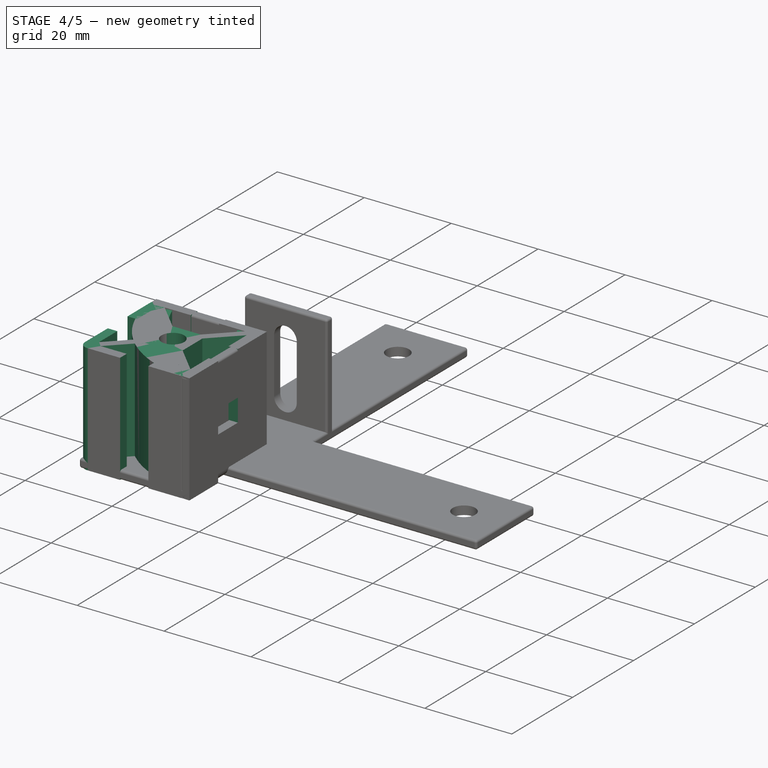
[diagram: stage 4 of 5 — iso view after this stage's code; geometry added in this stage tinted green]
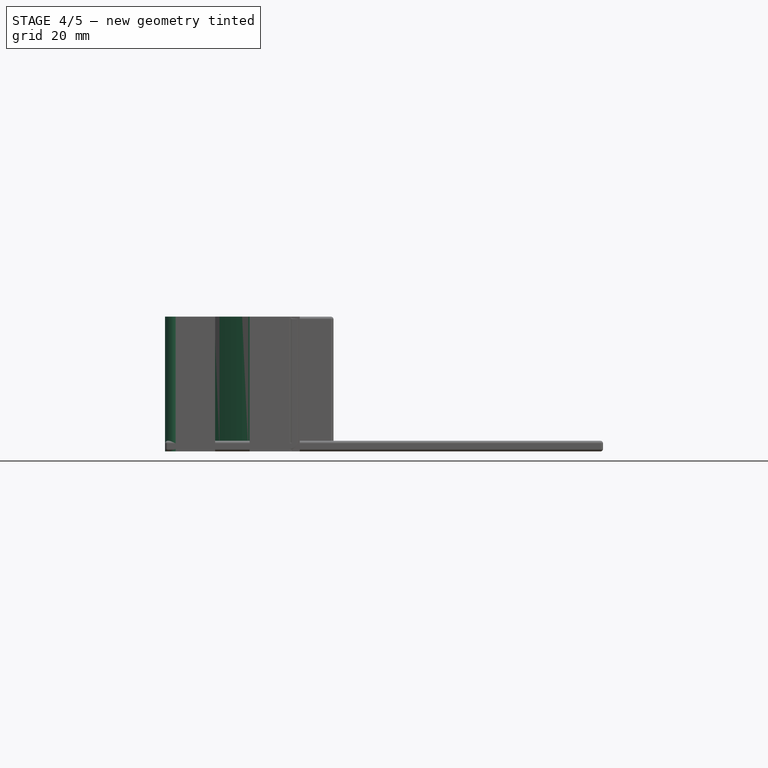
[diagram: stage 4 of 5 — front view after this stage's code; geometry added in this stage tinted green]
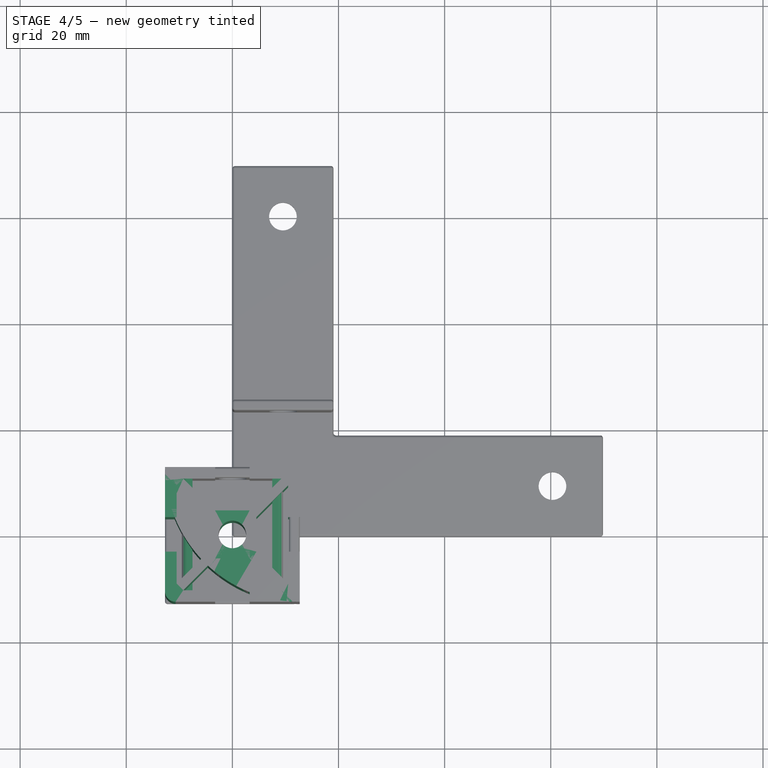
[diagram: stage 4 of 5 — top view after this stage's code; geometry added in this stage tinted green]
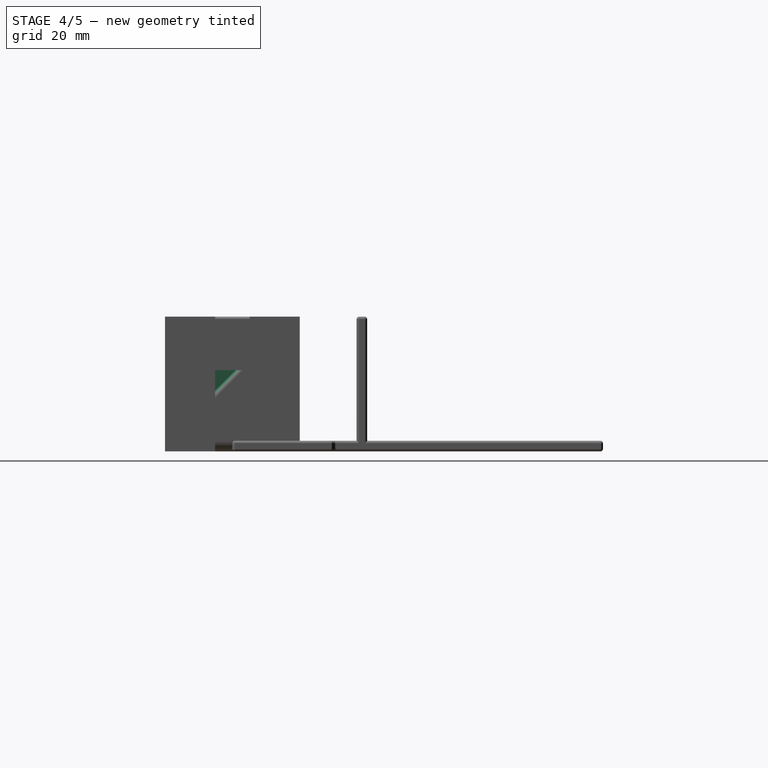
[diagram: stage 4 of 5 — right view after this stage's code; geometry added in this stage tinted green]
FEATURE [Spreadsheet::Sheet] Spreadsheet  label="Parameters"
  PythonMode = false
  ShowCells = 0
  TreeRank = 1
  cells = A1=Units; B1=in; C1=in or cm; E1=Top T-Slot; F1(Top_TSlot)=Yes; A2=Dimensions; B2=1; C2==B1; E2=Left T-Slot; F2(Left_TSlot)=Yes; A3=Length; B3=1; C3==B1; E3=Right T-Slot; F3(Right_TSlot)=Yes; A4=Hole Diameter; B4=0.205; C4==B1; E4=Bottom T-Slot; F4(Bottom_TSlot)=Yes; A5=T-slot Wing Thickness; B5=0.08599999999999999; C5==B1; E5=* Does not affect slot profile; A6=T-slot Opening Width; B6=0.256; C6==B1; A7=Inner Shaft Width; B7=0.356; C7==B1; A9=Actual Dimensions; B9(Dimensions)==(B1 == <<cm>> ? 1 : 25.4) * B2; A10=Actual Length; B10(Length)==(B1 == <<cm>> ? 1 : 25.4) * B3; A11=Actual Hole Diameter; B11(Hole_Diameter)==(B1 == <<cm>> ? 1 : 25.4) * B4; A12=Actual T-slot Wing Thickness; B12(Wing_Thickness)==(B1 == <<cm>> ? 1 : 25.4) * B5; A13=Actual T-slot Opening Width; B13(TSlot_Width)==(B1 == <<cm>> ? 1 : 25.4) * B6; A14=Actual Inner Shaft Width; B14(Inner_Dimensions)==(B1 == <<cm>> ? 1 : 25.4) * B7; A15=Corner Fillet; B15(Corner_Fillet)=2
FEATURE [Sketcher::SketchObject] Sketch  label="1x1 Sketch"
  ArcFitTolerance = 1e-06
  AttachmentSupport = -> [XY_Plane]
  ExternalBSplineMaxDegree = 5
  ExternalBSplineTolerance = 0.0001
  FullyConstrained = true
  InternalTolerance = 1e-06
  InvalidShape = false
  MakeInternals = false
  MapMode = 5
  Support = -> [XY_Plane]
  TreeRank = 12
  ValidateShape = true
  expr: Constraints[10] = <<Parameters>>.Dimensions
  expr: Constraints[11] = <<Parameters>>.Dimensions
  expr: Constraints[12] = <<Parameters>>.Hole_Diameter
  sketch-geometry (6):
    g0: LineSegment StartX=12.7 StartY=-12.7 StartZ=0 EndX=12.7 EndY=12.7 EndZ=0
    g1: LineSegment StartX=12.7 StartY=12.7 StartZ=0 EndX=-12.7 EndY=12.7 EndZ=0
    g2: LineSegment StartX=-12.7 StartY=12.7 StartZ=0 EndX=-12.7 EndY=-12.7 EndZ=0
    g3: LineSegment StartX=-12.7 StartY=-12.7 StartZ=0 EndX=12.7 EndY=-12.7 EndZ=0
    g4: GeomPoint [constr] X=2e-16 Y=1e-16 Z=0
    g5: Circle CenterX=2e-16 CenterY=1e-16 CenterZ=0 NormalX=0 NormalY=0 NormalZ=1 AngleXU=0 Radius=2.6035
  constraints (14):
    c: Coincident(g0,g1)
    c: Coincident(g1,g2)
    c: Coincident(g2,g3)
    c: Coincident(g3,g0)
    c: Horizontal(g1)
    c: Horizontal(g3)
    c: Vertical(g0)
    c: Vertical(g2)
    c: Symmetric(g1,g0,g4)
    c: Coincident(g4,g-1)
    c: Distance(g1) = 25.4
    c: Distance(g2) = 25.4
    c: Diameter(g5) = 5.207
    c: Coincident(g5,g4)
FEATURE [PartDesign::Pad] Pad  label="1x1 Body"
  AddSubType = 0
  AlongSketchNormal = false
  AutoTaperInnerAngle = true
  CheckUpToFaceLimits = true
  ClaimChildren = false
  Direction = (0,0,1)
  Fit = 0
  FitJoin = 0
  InnerFit = 0
  InnerFitJoin = 0
  InvalidShape = false
  Length = 25.4
  Length2 = 100
  Linearize = true
  NewSolid = false
  Profile = -> Sketch
  Suppress = false
  TaperInnerAngle = 0
  TaperInnerAngleRev = 0
  TreeRank = 13
  Type = 0
  ValidateShape = true
  _ProfileBasedVersion = 1
  expr: Length = <<Parameters>>.Length
FEATURE [Sketcher::SketchObject] Sketch001  label="1x1 T Slots Sketch"
  ArcFitTolerance = 1e-06
  AttachmentSupport = -> [Pad]
  ExternalBSplineMaxDegree = 5
  ExternalBSplineTolerance = 0.0001
  FullyConstrained = true
  InternalTolerance = 1e-06
  InvalidShape = false
  MakeInternals = false
  MapMode = 5
  Placement = pos=(0,0,25.4) rot=(0,0,1;0rad)
  Support = -> [Pad]
  TreeRank = 14
  ValidateShape = true
  expr: Constraints[16] = <<Parameters>>.Wing_Thickness
  expr: Constraints[17] = <<Parameters>>.TSlot_Width
  expr: Constraints[19] = (Spreadsheet.Dimensions - Spreadsheet.Inner_Dimensions) / 2
  expr: Constraints[20] = <<Parameters>>.Top_TSlot == <<No>> ? Spreadsheet.Dimensions * 2 : Spreadsheet.Dimensions / 2
  expr: Constraints[37] = <<Parameters>>.TSlot_Width
  expr: Constraints[38] = <<Parameters>>.Wing_Thickness
  expr: Constraints[40] = (Spreadsheet.Dimensions - Spreadsheet.Inner_Dimensions) / 2
  expr: Constraints[41] = <<Parameters>>.Right_TSlot == <<No>> ? Spreadsheet.Dimensions * 2 : Spreadsheet.Dimensions / 2
  expr: Constraints[58] = <<Parameters>>.TSlot_Width
  expr: Constraints[60] = <<Parameters>>.Wing_Thickness
  expr: Constraints[61] = (Spreadsheet.Dimensions - Spreadsheet.Inner_Dimensions) / 2
  expr: Constraints[62] = <<Parameters>>.Bottom_TSlot == <<No>> ? Spreadsheet.Dimensions * 2 : Spreadsheet.Dimensions / 2
  expr: Constraints[79] = <<Parameters>>.TSlot_Width
  expr: Constraints[80] = <<Parameters>>.Wing_Thickness
  expr: Constraints[82] = (Spreadsheet.Dimensions - Spreadsheet.Inner_Dimensions) / 2
  expr: Constraints[83] = <<Parameters>>.Left_TSlot == <<No>> ? Spreadsheet.Dimensions * 2 : Spreadsheet.Dimensions / 2
  sketch-geometry (32):
    g0: LineSegment StartX=-3.2512 StartY=4.5212 StartZ=0 EndX=3.2512 EndY=4.5212 EndZ=0
    g1: LineSegment StartX=-3.2512 StartY=12.7 StartZ=0 EndX=3.2512 EndY=12.7 EndZ=0
    g2: LineSegment StartX=-3.2512 StartY=12.7 StartZ=0 EndX=-3.2512 EndY=10.5156 EndZ=0
    g3: LineSegment StartX=3.2512 StartY=12.7 StartZ=0 EndX=3.2512 EndY=10.5156 EndZ=0
    g4: LineSegment StartX=3.2512 StartY=10.5156 StartZ=0 EndX=9.2456 EndY=10.5156 EndZ=0
    g5: LineSegment StartX=-3.2512 StartY=10.5156 StartZ=0 EndX=-9.2456 EndY=10.5156 EndZ=0
    g6: LineSegment StartX=-9.2456 StartY=10.5156 StartZ=0 EndX=-3.2512 EndY=4.5212 EndZ=0
    g7: LineSegment StartX=3.2512 StartY=4.5212 StartZ=0 EndX=9.2456 EndY=10.5156 EndZ=0
    g8: LineSegment StartX=4.5212 StartY=3.2512 StartZ=0 EndX=4.5212 EndY=-3.2512 EndZ=0
    g9: LineSegment StartX=12.7 StartY=3.2512 StartZ=0 EndX=12.7 EndY=-3.2512 EndZ=0
    g10: LineSegment StartX=12.7 StartY=-3.2512 StartZ=0 EndX=10.5156 EndY=-3.2512 EndZ=0
    g11: LineSegment StartX=12.7 StartY=3.2512 StartZ=0 EndX=10.5156 EndY=3.2512 EndZ=0
    g12: LineSegment StartX=10.5156 StartY=3.2512 StartZ=0 EndX=10.5156 EndY=9.2456 EndZ=0
    g13: LineSegment StartX=10.5156 StartY=-3.2512 StartZ=0 EndX=10.5156 EndY=-9.2456 EndZ=0
    g14: LineSegment StartX=10.5156 StartY=-9.2456 StartZ=0 EndX=4.5212 EndY=-3.2512 EndZ=0
    g15: LineSegment StartX=10.5156 StartY=9.2456 StartZ=0 EndX=4.5212 EndY=3.2512 EndZ=0
    g16: LineSegment StartX=-3.2512 StartY=-4.5212 StartZ=0 EndX=3.2512 EndY=-4.5212 EndZ=0
    g17: LineSegment StartX=-3.2512 StartY=-12.7 StartZ=0 EndX=3.2512 EndY=-12.7 EndZ=0
    g18: LineSegment StartX=3.2512 StartY=-12.7 StartZ=0 EndX=3.2512 EndY=-10.5156 EndZ=0
    g19: LineSegment StartX=-3.2512 StartY=-12.7 StartZ=0 EndX=-3.2512 EndY=-10.5156 EndZ=0
    g20: LineSegment StartX=-3.2512 StartY=-10.5156 StartZ=0 EndX=-9.2456 EndY=-10.5156 EndZ=0
    g21: LineSegment StartX=3.2512 StartY=-10.5156 StartZ=0 EndX=9.2456 EndY=-10.5156 EndZ=0
    g22: LineSegment StartX=9.2456 StartY=-10.5156 StartZ=0 EndX=3.2512 EndY=-4.5212 EndZ=0
    g23: LineSegment StartX=-3.2512 StartY=-4.5212 StartZ=0 EndX=-9.2456 EndY=-10.5156 EndZ=0
    g24: LineSegment StartX=-4.5212 StartY=3.2512 StartZ=0 EndX=-4.5212 EndY=-3.2512 EndZ=0
    g25: LineSegment StartX=-12.7 StartY=3.2512 StartZ=0 EndX=-12.7 EndY=-3.2512 EndZ=0
    g26: LineSegment StartX=-12.7 StartY=-3.2512 StartZ=0 EndX=-10.5156 EndY=-3.2512 EndZ=0
    g27: LineSegment StartX=-12.7 StartY=3.2512 StartZ=0 EndX=-10.5156 EndY=3.2512 EndZ=0
    g28: LineSegment StartX=-10.5156 StartY=3.2512 StartZ=0 EndX=-10.5156 EndY=9.2456 EndZ=0
    g29: LineSegment StartX=-10.5156 StartY=-3.2512 StartZ=0 EndX=-10.5156 EndY=-9.2456 EndZ=0
    g30: LineSegment StartX=-10.5156 StartY=-9.2456 StartZ=0 EndX=-4.5212 EndY=-3.2512 EndZ=0
    g31: LineSegment StartX=-10.5156 StartY=9.2456 StartZ=0 EndX=-4.5212 EndY=3.2512 EndZ=0
  constraints (84):
    c: Coincident(g2,g1)
    c: Vertical(g2)
    c: Coincident(g3,g1)
    c: Vertical(g3)
    c: Coincident(g4,g3)
    c: Horizontal(g4)
    c: Coincident(g5,g2)
    c: Horizontal(g5)
    c: Coincident(g6,g5)
    c: Coincident(g6,g0)
    c: Coincident(g7,g0)
    c: Coincident(g7,g4)
    c: Symmetric(g1,g1,g-2)
    c: Symmetric(g0,g0,g-2)
    c: Symmetric(g5,g4,g-2)
    c: Equal(g1,g0)
    c: DistanceY(g3,g1) = 2.1844
    c: DistanceX(g1,g1) = 6.5024
    c: Angle(g7,g0) = 2.35619
    c: DistanceY(g0,g1) = 8.1788
    c: DistanceY(g-1,g1) = 12.7
    c: Coincident(g10,g9)
    c: Horizontal(g10)
    c: Coincident(g11,g9)
    c: Horizontal(g11)
    c: Coincident(g12,g11)
    c: Vertical(g12)
    c: Coincident(g13,g10)
    c: Vertical(g13)
    c: Coincident(g14,g13)
    c: Coincident(g14,g8)
    c: Coincident(g15,g12)
    c: Coincident(g15,g8)
    c: Symmetric(g9,g9,g-1)
    c: Symmetric(g8,g8,g-1)
    c: Symmetric(g12,g13,g-1)
    c: Equal(g9,g8)
    c: DistanceY(g9,g9) = 6.5024
    c: DistanceX(g11,g9) = 2.1844
    c: Angle(g14,g8) = 2.35619
    c: DistanceX(g8,g9) = 8.1788
    c: DistanceX(g-1,g9) = 12.7
    c: Coincident(g18,g17)
    c: Vertical(g18)
    c: Coincident(g19,g17)
    c: Vertical(g19)
    c: Coincident(g20,g19)
    c: Horizontal(g20)
    c: Coincident(g21,g18)
    c: Horizontal(g21)
    c: Coincident(g22,g21)
    c: Coincident(g22,g16)
    c: Coincident(g23,g16)
    c: Coincident(g23,g20)
    c: Symmetric(g16,g16,g-2)
    c: Symmetric(g17,g17,g-2)
    c: Symmetric(g20,g21,g-2)
    c: Equal(g17,g16)
    c: DistanceX(g17,g17) = 6.5024
    c: Angle(g23,g16) = 2.35619
    c: DistanceY(g17,g18) = 2.1844
    c: DistanceY(g17,g16) = 8.1788
    c: DistanceY(g17,g-1) = 12.7
    c: Coincident(g26,g25)
    c: Horizontal(g26)
    c: Coincident(g27,g25)
    c: Horizontal(g27)
    c: Coincident(g28,g27)
    c: Vertical(g28)
    c: Coincident(g29,g26)
    c: Vertical(g29)
    c: Coincident(g30,g29)
    c: Coincident(g30,g24)
    c: Coincident(g31,g28)
    c: Coincident(g31,g24)
    c: Symmetric(g25,g25,g-1)
    c: Symmetric(g24,g24,g-1)
    c: Symmetric(g29,g28,g-1)
    c: Equal(g25,g24)
    c: DistanceY(g25,g25) = 6.5024
    c: DistanceX(g25,g27) = 2.1844
    c: Angle(g31,g24) = 2.35619
    c: DistanceX(g25,g24) = 8.1788
    c: DistanceX(g25,g-1) = 12.7
FEATURE [PartDesign::Pocket] Pocket  label="1x1 T Slots"
  AddSubType = 1
  AutoTaperInnerAngle = true
  BaseFeature = -> Pad
  CheckUpToFaceLimits = true
  ClaimChildren = false
  Fit = 0
  FitJoin = 0
  InnerFit = 0
  InnerFitJoin = 0
  InvalidShape = false
  Length = 5
  Length2 = 100
  Linearize = true
  NewSolid = false
  Profile = -> Sketch001
  Suppress = false
  TaperInnerAngle = 0
  TaperInnerAngleRev = 0
  TreeRank = 15
  Type = 1
  ValidateShape = true
  _ProfileBasedVersion = 1
  _Version = 1
FEATURE [Sketcher::SketchObject] Sketch002  label="Quarter Round Sketch"
  ArcFitTolerance = 1e-06
  AttachmentSupport = -> [XY_Plane001]
  ExternalBSplineMaxDegree = 5
  ExternalBSplineTolerance = 0.0001
  FullyConstrained = true
  InternalTolerance = 1e-06
  InvalidShape = false
  MakeInternals = false
  MapMode = 5
  Support = -> [XY_Plane001]
  TreeRank = 12
  ValidateShape = true
  expr: Constraints[3] = Spreadsheet.Dimensions
  expr: Constraints[4] = <<Parameters>>.Hole_Diameter
  sketch-geometry (5):
    g0: LineSegment StartX=12.7 StartY=-12.7 StartZ=0 EndX=12.7 EndY=12.7 EndZ=0
    g1: LineSegment StartX=12.7 StartY=12.7 StartZ=0 EndX=-12.7 EndY=12.7 EndZ=0
    g2: GeomPoint [constr] X=3e-16 Y=0 Z=0
    g3: Circle CenterX=3e-16 CenterY=0 CenterZ=0 NormalX=0 NormalY=0 NormalZ=1 AngleXU=0 Radius=2.6035
    g4: ArcOfCircle CenterX=12.7 CenterY=12.7 CenterZ=0 NormalX=0 NormalY=0 NormalZ=1 AngleXU=0 Radius=25.4 StartAngle=3.14159 EndAngle=4.71239
  constraints (11):
    c: Coincident(g0,g1)
    c: Symmetric(g1,g0,g2)
    c: Coincident(g2,g-1)
    c: Distance(g1) = 25.4
    c: Diameter(g3) = 5.207
    c: Coincident(g3,g2)
    c: Symmetric(g1,g0,g-2)
    c: Symmetric(g0,g0,g-1)
    c: Coincident(g4,g1)
    c: Coincident(g4,g0)
    c: Coincident(g4,g0)
FEATURE [PartDesign::Pad] Pad001  label="Quarter Round Body"
  AddSubType = 0
  AlongSketchNormal = false
  AutoTaperInnerAngle = true
  CheckUpToFaceLimits = true
  ClaimChildren = false
  Direction = (0,0,1)
  Fit = 0
  FitJoin = 0
  InnerFit = 0
  InnerFitJoin = 0
  InvalidShape = false
  Length = 25.4
  Length2 = 100
  Linearize = true
  NewSolid = false
  Profile = -> Sketch002
  Suppress = false
  TaperInnerAngle = 0
  TaperInnerAngleRev = 0
  TreeRank = 13
  Type = 0
  ValidateShape = true
  _ProfileBasedVersion = 1
  expr: Length = <<Parameters>>.Length
FEATURE [Sketcher::SketchObject] Sketch003  label="Quarter Round T Slots Sketch"
  ArcFitTolerance = 1e-06
  AttachmentSupport = -> [Pad001]
  ExternalBSplineMaxDegree = 5
  ExternalBSplineTolerance = 0.0001
  FullyConstrained = true
  InternalTolerance = 1e-06
  InvalidShape = false
  MakeInternals = false
  MapMode = 5
  Placement = pos=(0,0,25.4) rot=(0,0,1;0rad)
  Support = -> [Pad001]
  TreeRank = 14
  ValidateShape = true
  expr: Constraints[16] = <<Parameters>>.Wing_Thickness
  expr: Constraints[17] = <<Parameters>>.TSlot_Width
  expr: Constraints[19] = (Spreadsheet.Dimensions - Spreadsheet.Inner_Dimensions) / 2
  expr: Constraints[20] = <<Parameters>>.Top_TSlot == <<No>> ? Spreadsheet.Dimensions * 2 : Spreadsheet.Dimensions / 2
  expr: Constraints[37] = <<Parameters>>.TSlot_Width
  expr: Constraints[38] = <<Parameters>>.Wing_Thickness
  expr: Constraints[40] = (Spreadsheet.Dimensions - Spreadsheet.Inner_Dimensions) / 2
  expr: Constraints[41] = <<Parameters>>.Right_TSlot == <<No>> ? Spreadsheet.Dimensions * 2 : Spreadsheet.Dimensions / 2
  sketch-geometry (16):
    g0: LineSegment StartX=-3.2512 StartY=4.5212 StartZ=0 EndX=3.2512 EndY=4.5212 EndZ=0
    g1: LineSegment StartX=-3.2512 StartY=12.7 StartZ=0 EndX=3.2512 EndY=12.7 EndZ=0
    g2: LineSegment StartX=-3.2512 StartY=12.7 StartZ=0 EndX=-3.2512 EndY=10.5156 EndZ=0
    g3: LineSegment StartX=3.2512 StartY=12.7 StartZ=0 EndX=3.2512 EndY=10.5156 EndZ=0
    g4: LineSegment StartX=3.2512 StartY=10.5156 StartZ=0 EndX=9.2456 EndY=10.5156 EndZ=0
    g5: LineSegment StartX=-3.2512 StartY=10.5156 StartZ=0 EndX=-9.2456 EndY=10.5156 EndZ=0
    g6: LineSegment StartX=-9.2456 StartY=10.5156 StartZ=0 EndX=-3.2512 EndY=4.5212 EndZ=0
    g7: LineSegment StartX=3.2512 StartY=4.5212 StartZ=0 EndX=9.2456 EndY=10.5156 EndZ=0
    g8: LineSegment StartX=4.5212 StartY=3.2512 StartZ=0 EndX=4.5212 EndY=-3.2512 EndZ=0
    g9: LineSegment StartX=12.7 StartY=3.2512 StartZ=0 EndX=12.7 EndY=-3.2512 EndZ=0
    g10: LineSegment StartX=12.7 StartY=-3.2512 StartZ=0 EndX=10.5156 EndY=-3.2512 EndZ=0
    g11: LineSegment StartX=12.7 StartY=3.2512 StartZ=0 EndX=10.5156 EndY=3.2512 EndZ=0
    g12: LineSegment StartX=10.5156 StartY=3.2512 StartZ=0 EndX=10.5156 EndY=9.2456 EndZ=0
    g13: LineSegment StartX=10.5156 StartY=-3.2512 StartZ=0 EndX=10.5156 EndY=-9.2456 EndZ=0
    g14: LineSegment StartX=10.5156 StartY=-9.2456 StartZ=0 EndX=4.5212 EndY=-3.2512 EndZ=0
    g15: LineSegment StartX=10.5156 StartY=9.2456 StartZ=0 EndX=4.5212 EndY=3.2512 EndZ=0
  constraints (42):
    c: Coincident(g2,g1)
    c: Vertical(g2)
    c: Coincident(g3,g1)
    c: Vertical(g3)
    c: Coincident(g4,g3)
    c: Horizontal(g4)
    c: Coincident(g5,g2)
    c: Horizontal(g5)
    c: Coincident(g6,g5)
    c: Coincident(g6,g0)
    c: Coincident(g7,g0)
    c: Coincident(g7,g4)
    c: Symmetric(g1,g1,g-2)
    c: Symmetric(g0,g0,g-2)
    c: Symmetric(g5,g4,g-2)
    c: Equal(g1,g0)
    c: DistanceY(g3,g1) = 2.1844
    c: DistanceX(g1,g1) = 6.5024
    c: Angle(g7,g0) = 2.35619
    c: DistanceY(g0,g1) = 8.1788
    c: DistanceY(g-1,g1) = 12.7
    c: Coincident(g10,g9)
    c: Horizontal(g10)
    c: Coincident(g11,g9)
    c: Horizontal(g11)
    c: Coincident(g12,g11)
    c: Vertical(g12)
    c: Coincident(g13,g10)
    c: Vertical(g13)
    c: Coincident(g14,g13)
    c: Coincident(g14,g8)
    c: Coincident(g15,g12)
    c: Coincident(g15,g8)
    c: Symmetric(g9,g9,g-1)
    c: Symmetric(g8,g8,g-1)
    c: Symmetric(g12,g13,g-1)
    c: Equal(g9,g8)
    c: DistanceY(g9,g9) = 6.5024
    c: DistanceX(g11,g9) = 2.1844
    c: Angle(g14,g8) = 2.35619
    c: DistanceX(g8,g9) = 8.1788
    c: DistanceX(g-1,g9) = 12.7
FEATURE [PartDesign::Pocket] Pocket001  label="Quarter Round T Slots"
  AddSubType = 1
  AutoTaperInnerAngle = true
  BaseFeature = -> Pad001
  CheckUpToFaceLimits = true
  ClaimChildren = false
  Fit = 0
  FitJoin = 0
  InnerFit = 0
  InnerFitJoin = 0
  InvalidShape = false
  Length = 5
  Length2 = 100
  Linearize = true
  NewSolid = false
  Profile = -> Sketch003
  Suppress = false
  TaperInnerAngle = 0
  TaperInnerAngleRev = 0
  TreeRank = 15
  Type = 1
  ValidateShape = true
  _ProfileBasedVersion = 1
  _Version = 1
FEATURE [PartDesign::Body] Body001  label="Quarter Round Profile"
  AutoGroupSolids = false
  ClaimAllChildren = false
  ExportMode = 0
  Group = -> [Sketch002,Pad001,Sketch003,Pocket001,Fillet001]
  InvalidShape = false
  Origin = -> Origin001
  Tip = -> Fillet001
  TreeRank = 17
  ValidateShape = true
  _ExportChildren = -> [Pad001,Pocket001,Fillet001]
  _GroupVersion = 1
FEATURE [PartDesign::Fillet] Fillet002  label="1x1 Corner Fillet"
  AddSubType = 0
  Base = -> Pocket [Edge4,Edge104,Edge95,Edge86]
  BaseFeature = -> Pocket
  InvalidShape = false
  NewSolid = false
  Radius = 2
  SupportTransform = false
  Suppress = false
  TreeRank = 59
  ValidateShape = true
  expr: Radius = <<Parameters>>.Corner_Fillet
FEATURE [Sketcher::SketchObject] Sketch012  label="Supported Corner Bracket Hollow Sketch"
  ArcFitTolerance = 1e-06
  AttachmentSupport = -> [Pocket002]
  ExternalBSplineMaxDegree = 5
  ExternalBSplineTolerance = 0.0001
  FullyConstrained = true
  InternalTolerance = 1e-06
  InvalidShape = false
  MakeInternals = false
  MapMode = 5
  Placement = pos=(0,0,25.4) rot=(0,0,1;0rad)
  Support = -> [Pocket002]
  TreeRank = 75
  ValidateShape = true
  expr: Constraints[10] = <<Parameters>>.Dimensions * 3 / 8 - 2
  expr: Constraints[11] = <<Parameters>>.Dimensions * 3 / 8 - 2
  expr: Constraints[8] = <<Parameters>>.Dimensions / 2
  expr: Constraints[9] = <<Parameters>>.Dimensions / 2 - 2
  sketch-geometry (4):
    g0: LineSegment StartX=-7.525 StartY=10.7 StartZ=0 EndX=7.525 EndY=10.7 EndZ=0
    g1: LineSegment StartX=7.525 StartY=10.7 StartZ=0 EndX=7.525 EndY=-12.7 EndZ=0
    g2: LineSegment StartX=7.525 StartY=-12.7 StartZ=0 EndX=-7.525 EndY=-12.7 EndZ=0
    g3: LineSegment StartX=-7.525 StartY=-12.7 StartZ=0 EndX=-7.525 EndY=10.7 EndZ=0
  constraints (12):
    c: Coincident(g0,g1)
    c: Coincident(g1,g2)
    c: Coincident(g2,g3)
    c: Coincident(g3,g0)
    c: Horizontal(g0)
    c: Horizontal(g2)
    c: Vertical(g1)
    c: Vertical(g3)
    c: DistanceY(g1,g-1) = 12.7
    c: DistanceY(g-1,g0) = 10.7
    c: DistanceX(g-1,g0) = 7.525
    c: DistanceX(g0,g-1) = 7.525
FEATURE [PartDesign::Pocket] Pocket003  label="Supported Corner Bracket Hollow"
  AddSubType = 1
  AutoTaperInnerAngle = true
  BaseFeature = -> Pocket002
  CheckUpToFaceLimits = true
  ClaimChildren = false
  Fit = 0
  FitJoin = 0
  InnerFit = 0
  InnerFitJoin = 0
  InvalidShape = false
  Length = 23.4
  Length2 = 100
  Linearize = true
  NewSolid = false
  Profile = -> Sketch012
  Suppress = false
  TaperInnerAngle = 0
  TaperInnerAngleRev = 0
  TreeRank = 76
  Type = 0
  ValidateShape = true
  _ProfileBasedVersion = 1
  _Version = 1
  expr: Length = <<Parameters>>.Dimensions - 2
FEATURE [Sketcher::SketchObject] Sketch013
  ArcFitTolerance = 1e-06
  AttachmentSupport = -> [Pocket003]
  ExternalBSplineMaxDegree = 5
  ExternalBSplineTolerance = 0.0001
  FullyConstrained = true
  InternalTolerance = 1e-06
  InvalidShape = false
  MakeInternals = false
  MapMode = 5
  Placement = pos=(-9.525,0,0) rot=(0.57735,-0.57735,-0.57735;2.0944rad)
  Support = -> [Pocket003]
  TreeRank = 77
  ValidateShape = true
  expr: Constraints[5] = <<Parameters>>.Dimensions
  expr: Constraints[6] = <<Parameters>>.Dimensions / 2
  expr: Constraints[7] = <<Parameters>>.Dimensions / 2 - 2
  sketch-geometry (3):
    g0: LineSegment StartX=-10.7 StartY=25.4 StartZ=0 EndX=12.7 EndY=2 EndZ=0
    g1: LineSegment StartX=12.7 StartY=2 StartZ=0 EndX=12.7 EndY=25.4 EndZ=0
    g2: LineSegment StartX=12.7 StartY=25.4 StartZ=0 EndX=-10.7 EndY=25.4 EndZ=0
  constraints (9):
    c: Coincident(g1,g0)
    c: Vertical(g1)
    c: Coincident(g2,g1)
    c: Coincident(g2,g0)
    c: Horizontal(g2)
    c: DistanceY(g-1,g1) = 25.4
    c: DistanceX(g-1,g1) = 12.7
    c: DistanceX(g0,g-1) = 10.7
    c: DistanceY(g-1,g0) = 2
FEATURE [PartDesign::Pocket] Pocket004  label="Support Coner Bracket Diagonal"
  AddSubType = 1
  AutoTaperInnerAngle = true
  BaseFeature = -> Pocket003
  CheckUpToFaceLimits = true
  ClaimChildren = false
  Fit = 0
  FitJoin = 0
  InnerFit = 0
  InnerFitJoin = 0
  InvalidShape = false
  Length = 5
  Length2 = 100
  Linearize = true
  NewSolid = false
  Profile = -> Sketch013
  Suppress = false
  TaperInnerAngle = 0
  TaperInnerAngleRev = 0
  TreeRank = 78
  Type = 1
  ValidateShape = true
  _ProfileBasedVersion = 1
  _Version = 1
FEATURE [PartDesign::Fillet] Fillet003  label="Supported Corner Bracket Corner Fillet"
  AddSubType = 0
  Base = -> Pocket004 [Edge8,Edge13,Edge4,Edge2,Edge1,Edge6,Edge28,Edge5,Edge27,Edge3,Edge21,Edge7,Edge14]
  BaseFeature = -> Pocket004
  InvalidShape = false
  NewSolid = false
  Radius = 1
  SupportTransform = false
  Suppress = false
  TreeRank = 79
  ValidateShape = true
FEATURE [PartDesign::Fillet] Fillet004  label="Supported Corner Bracket Slot Fillet"
  AddSubType = 0
  Base = -> Fillet003 [Edge30,Edge24,Edge68,Edge62,Edge39,Edge48]
  BaseFeature = -> Fillet003
  InvalidShape = false
  NewSolid = false
  Radius = 0.5
  SupportTransform = false
  Suppress = false
  TreeRank = 80
  ValidateShape = true
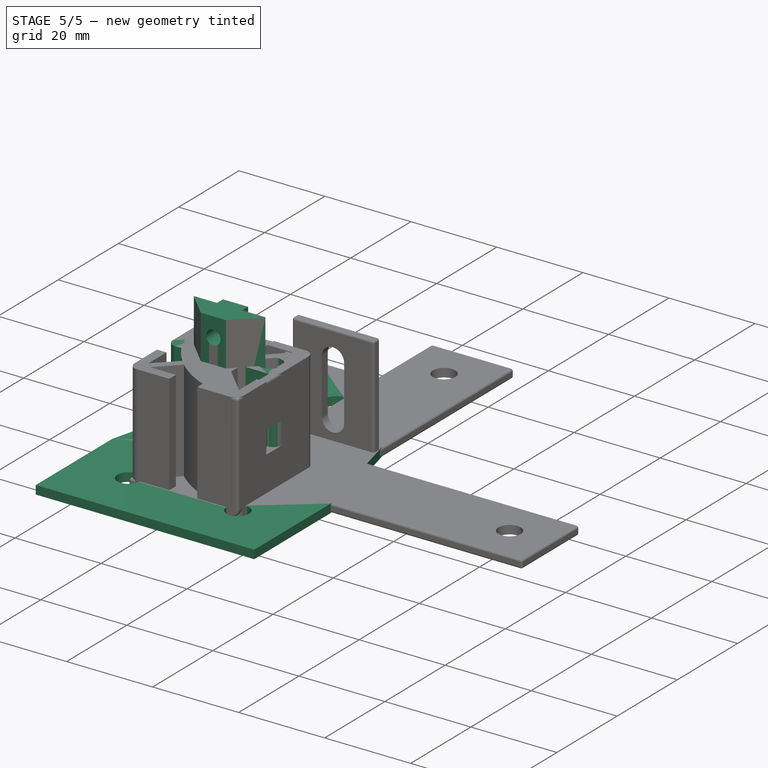
[diagram: stage 5 of 5 — iso view after this stage's code; geometry added in this stage tinted green]
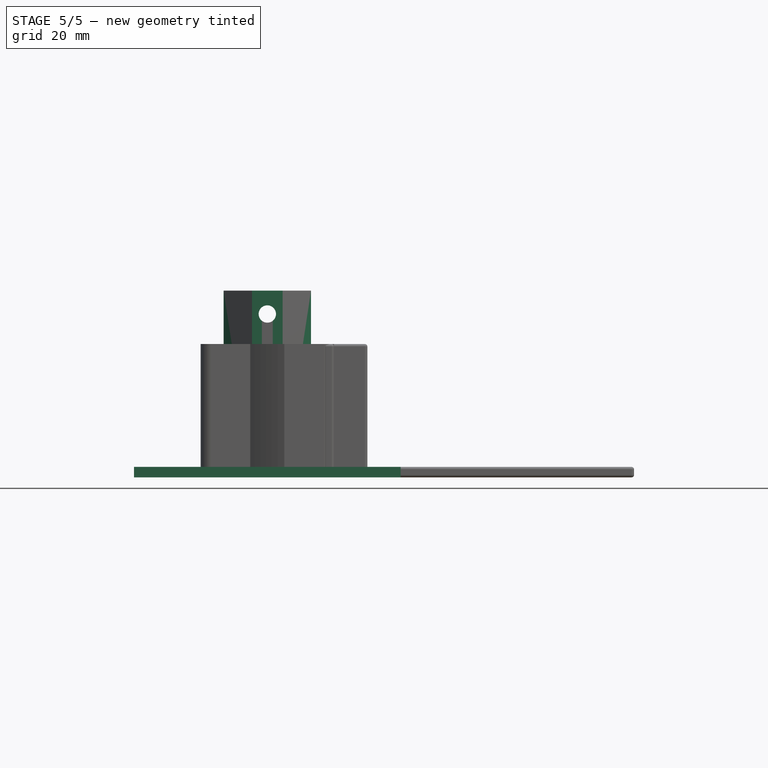
[diagram: stage 5 of 5 — front view after this stage's code; geometry added in this stage tinted green]
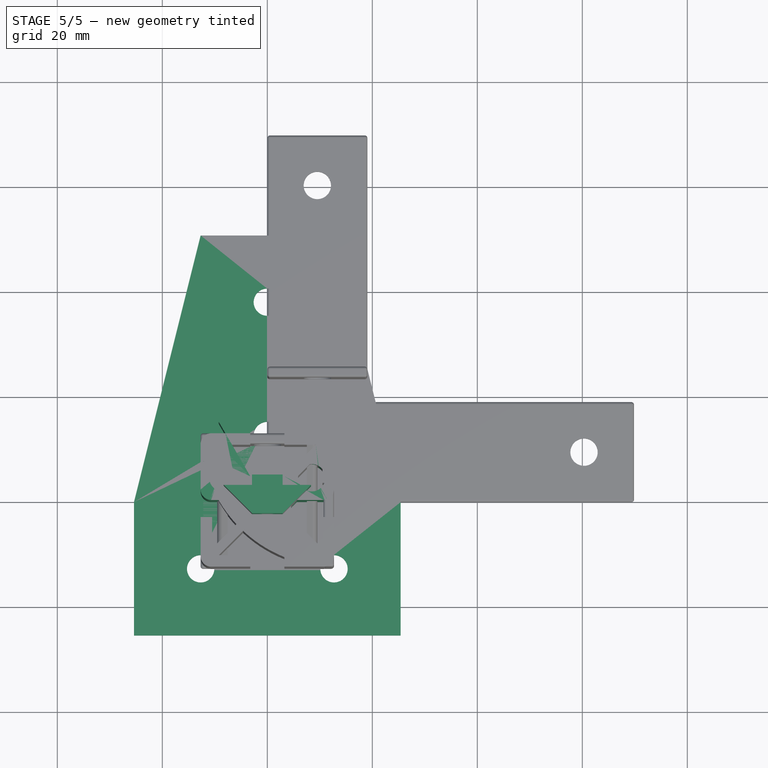
[diagram: stage 5 of 5 — top view after this stage's code; geometry added in this stage tinted green]
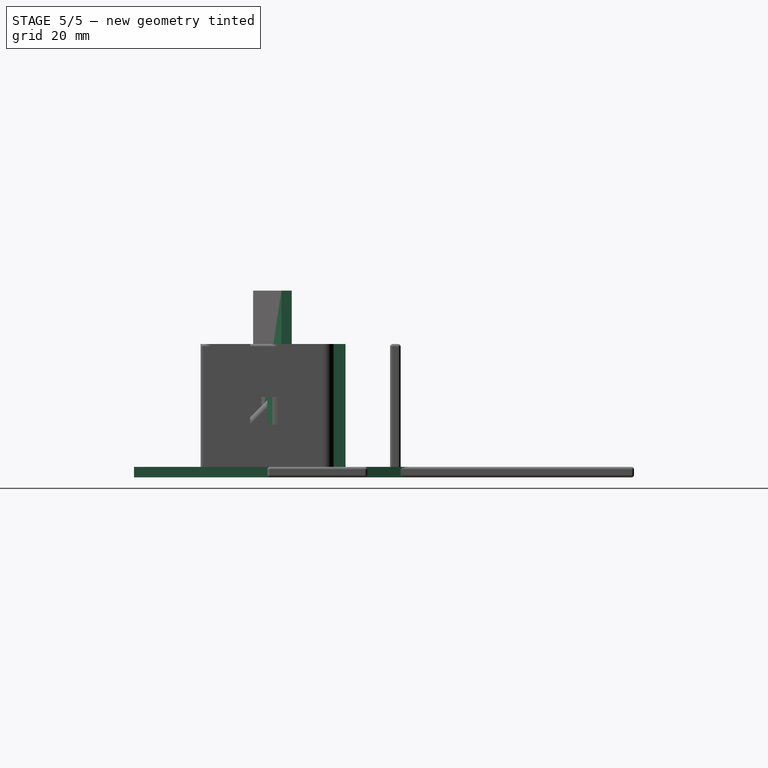
[diagram: stage 5 of 5 — right view after this stage's code; geometry added in this stage tinted green]
FEATURE [Sketcher::SketchObject] Sketch004  label="4 Hole Tee Plate Sketch"
  ArcFitTolerance = 1e-06
  AttachmentSupport = -> [XY_Plane002]
  ExternalBSplineMaxDegree = 5
  ExternalBSplineTolerance = 0.0001
  FullyConstrained = true
  InternalTolerance = 1e-06
  InvalidShape = false
  MakeInternals = false
  MapMode = 5
  Support = -> [XY_Plane002]
  TreeRank = 28
  ValidateShape = true
  expr: Constraints[10] = Spreadsheet.Dimensions * 2
  expr: Constraints[1] = Spreadsheet.Dimensions * 2
  expr: Constraints[22] = Spreadsheet.Dimensions / 2
  expr: Constraints[23] = <<Parameters>>.Hole_Diameter
  expr: Constraints[24] = Spreadsheet.Dimensions / 2
  expr: Constraints[25] = Spreadsheet.Dimensions
  expr: Constraints[26] = Spreadsheet.Dimensions / 2
  expr: Constraints[7] = Spreadsheet.Dimensions
  expr: Constraints[9] = Spreadsheet.Dimensions
  sketch-geometry (10):
    g0: LineSegment StartX=-25.4 StartY=-25.4 StartZ=0 EndX=25.4 EndY=-25.4 EndZ=0
    g1: LineSegment StartX=-25.4 StartY=-25.4 StartZ=0 EndX=-25.4 EndY=0 EndZ=0
    g2: LineSegment StartX=25.4 StartY=-25.4 StartZ=0 EndX=25.4 EndY=0 EndZ=0
    g3: LineSegment StartX=-12.7 StartY=50.8 StartZ=0 EndX=12.7 EndY=50.8 EndZ=0
    g4: LineSegment StartX=-25.4 StartY=-6e-16 StartZ=0 EndX=-12.7 EndY=50.8 EndZ=0
    g5: LineSegment StartX=12.7 StartY=50.8 StartZ=0 EndX=25.4 EndY=0 EndZ=0
    g6: Circle CenterX=12.7 CenterY=-12.7 CenterZ=0 NormalX=0 NormalY=0 NormalZ=1 AngleXU=0 Radius=2.6035
    g7: Circle CenterX=-12.7 CenterY=-12.7 CenterZ=0 NormalX=0 NormalY=0 NormalZ=1 AngleXU=0 Radius=2.6035
    g8: Circle CenterX=0 CenterY=38.1 CenterZ=0 NormalX=0 NormalY=0 NormalZ=1 AngleXU=0 Radius=2.6035
    g9: Circle CenterX=0 CenterY=12.7 CenterZ=0 NormalX=0 NormalY=0 NormalZ=1 AngleXU=0 Radius=2.6035
  constraints (27):
    c: Symmetric(g0,g0,g-2)
    c: DistanceX(g0,g0) = 50.8
    c: Coincident(g1,g0)
    c: Vertical(g1)
    c: Coincident(g2,g0)
    c: Vertical(g2)
    c: Equal(g2,g1)
    c: DistanceY(g0,g2) = 25.4
    c: Symmetric(g3,g3,g-2)
    c: DistanceX(g3,g3) = 25.4
    c: DistanceY(g2,g3) = 50.8
    c: Coincident(g4,g1)
    c: Coincident(g4,g3)
    c: Coincident(g5,g3)
    c: Coincident(g5,g2)
    c: PointOnObject(g2,g-1)
    c: PointOnObject(g8,g-2)
    c: PointOnObject(g9,g-2)
    c: Equal(g6,g7)
    c: Equal(g6,g8)
    c: Equal(g6,g9)
    c: Symmetric(g6,g7,g-2)
    c: DistanceY(g0,g7) = 12.7
    c: Diameter(g6) = 5.207
    c: DistanceY(g-1,g9) = 12.7
    c: DistanceX(g7,g6) = 25.4
    c: DistanceY(g8,g3) = 12.7
FEATURE [PartDesign::Pad] Pad002  label="4 Hole Tee Plate001"
  AddSubType = 0
  AlongSketchNormal = false
  AutoTaperInnerAngle = true
  CheckUpToFaceLimits = true
  ClaimChildren = false
  Direction = (0,0,1)
  Fit = 0
  FitJoin = 0
  InnerFit = 0
  InnerFitJoin = 0
  InvalidShape = false
  Length = 2
  Length2 = 100
  Linearize = true
  NewSolid = false
  Profile = -> Sketch004
  Suppress = false
  TaperInnerAngle = 0
  TaperInnerAngleRev = 0
  TreeRank = 29
  Type = 0
  ValidateShape = true
  _ProfileBasedVersion = 1
FEATURE [PartDesign::Body] Body002  label="4 Hole Tee Plate"
  AutoGroupSolids = false
  ClaimAllChildren = false
  ExportMode = 0
  Group = -> [Sketch004,Pad002]
  InvalidShape = false
  Origin = -> Origin002
  Tip = -> Pad002
  TreeRank = 27
  ValidateShape = true
  _ExportChildren = -> [Pad002]
  _GroupVersion = 1
FEATURE [Sketcher::SketchObject] Sketch005  label="Single Self-Aligning T Nut Sketch"
  ArcFitTolerance = 1e-06
  AttachmentSupport = -> [XY_Plane003]
  ExternalBSplineMaxDegree = 5
  ExternalBSplineTolerance = 0.0001
  FullyConstrained = true
  InternalTolerance = 1e-06
  InvalidShape = false
  MakeInternals = false
  MapMode = 5
  Support = -> [XY_Plane003]
  TreeRank = 40
  ValidateShape = true
  expr: Constraints[16] = <<Parameters>>.TSlot_Width * 0.9
  expr: Constraints[18] = <<Parameters>>.Wing_Thickness * 0.9
  expr: Constraints[19] = (Spreadsheet.Dimensions - Spreadsheet.Inner_Dimensions) / 2 * 0.9
  sketch-geometry (8):
    g0: LineSegment StartX=-2.92608 StartY=-2.69748 StartZ=0 EndX=2.92608 EndY=-2.69748 EndZ=0
    g1: LineSegment StartX=-2.92608 StartY=4.66344 StartZ=0 EndX=2.92608 EndY=4.66344 EndZ=0
    g2: LineSegment StartX=2.92608 StartY=4.66344 StartZ=0 EndX=2.92608 EndY=2.69748 EndZ=0
    g3: LineSegment StartX=-2.92608 StartY=4.66344 StartZ=0 EndX=-2.92608 EndY=2.69748 EndZ=0
    g4: LineSegment StartX=-2.92608 StartY=2.69748 StartZ=0 EndX=-8.32104 EndY=2.69748 EndZ=0
    g5: LineSegment StartX=2.92608 StartY=2.69748 StartZ=0 EndX=8.32104 EndY=2.69748 EndZ=0
    g6: LineSegment StartX=8.32104 StartY=2.69748 StartZ=0 EndX=2.92608 EndY=-2.69748 EndZ=0
    g7: LineSegment StartX=-8.32104 StartY=2.69748 StartZ=0 EndX=-2.92608 EndY=-2.69748 EndZ=0
  constraints (20):
    c: Coincident(g2,g1)
    c: Vertical(g2)
    c: Coincident(g3,g1)
    c: Vertical(g3)
    c: Coincident(g4,g3)
    c: Horizontal(g4)
    c: Coincident(g5,g2)
    c: Horizontal(g5)
    c: Coincident(g6,g5)
    c: Coincident(g6,g0)
    c: Coincident(g7,g4)
    c: Coincident(g7,g0)
    c: Symmetric(g1,g1,g-2)
    c: Symmetric(g0,g0,g-2)
    c: Symmetric(g5,g4,g-2)
    c: Symmetric(g2,g0,g-1)
    c: DistanceX(g1,g1) = 5.85216
    c: Angle(g6,g0) = 2.35619
    c: DistanceY(g2,g1) = 1.96596
    c: DistanceY(g0,g1) = 7.36092
FEATURE [PartDesign::Pad] Pad003  label="Single Self-Aligning T Nut001"
  AddSubType = 0
  AlongSketchNormal = false
  AutoTaperInnerAngle = true
  CheckUpToFaceLimits = true
  ClaimChildren = false
  Direction = (0,0,1)
  Fit = 0
  FitJoin = 0
  InnerFit = 0
  InnerFitJoin = 0
  InvalidShape = false
  Length = 11.43
  Length2 = 100
  Linearize = true
  NewSolid = false
  Profile = -> Sketch005
  Suppress = false
  TaperInnerAngle = 0
  TaperInnerAngleRev = 0
  TreeRank = 41
  Type = 0
  ValidateShape = true
  _ProfileBasedVersion = 1
  expr: Length = Spreadsheet.Dimensions * 0.45
FEATURE [Sketcher::SketchObject] Sketch006  label="Screw Hole Sketch"
  ArcFitTolerance = 1e-06
  AttachmentSupport = -> [Pad003]
  ExternalBSplineMaxDegree = 5
  ExternalBSplineTolerance = 0.0001
  FullyConstrained = true
  InternalTolerance = 1e-06
  InvalidShape = false
  MakeInternals = false
  MapMode = 5
  Placement = pos=(0,4.66344,0) rot=(0,0.707107,0.707107;3.14159rad)
  Support = -> [Pad003]
  TreeRank = 42
  ValidateShape = true
  expr: Constraints[1] = <<Parameters>>.Hole_Diameter
  expr: Constraints[2] = Spreadsheet.Dimensions / 4 * 0.9
  sketch-geometry (1):
    g0: Circle CenterX=0 CenterY=5.715 CenterZ=0 NormalX=0 NormalY=0 NormalZ=1 AngleXU=0 Radius=2.6035
  constraints (3):
    c: PointOnObject(g0,g-2)
    c: Diameter(g0) = 5.207
    c: DistanceY(g-1,g0) = 5.715
FEATURE [PartDesign::Hole] Hole  label="Screw Hole"
  AddSubType = 1
  BaseFeature = -> Pad003
  ClaimChildren = false
  CustomThreadClearance = 0
  Depth = 25
  DepthType = 1
  Diameter = 3.322
  DrillForDepth = false
  DrillPoint = 1
  DrillPointAngle = 118
  Fit = 0
  FitJoin = 0
  HoleCutCountersinkAngle = 90
  HoleCutCustomValues = false
  HoleCutDepth = 0
  HoleCutDiameter = 6.1
  HoleCutType = 0
  InnerFit = 0
  InnerFitJoin = 0
  InvalidShape = false
  Linearize = true
  ModelThread = true
  NewSolid = false
  Profile = -> Sketch006
  Suppress = false
  Tapered = false
  TaperedAngle = 90
  ThreadClass = 0
  ThreadDepth = 43.4082
  ThreadDepthType = 0
  ThreadDirection = 0
  ThreadFit = 0
  ThreadSize = 11
  ThreadType = 1
  Threaded = true
  TreeRank = 43
  UseCustomThreadClearance = false
  ValidateShape = true
  _ProfileBasedVersion = 1
FEATURE [PartDesign::Body] Body003  label="Single Self-Aligning T Nut"
  AutoGroupSolids = false
  ClaimAllChildren = false
  ExportMode = 0
  Group = -> [Sketch005,Pad003,Sketch006,Hole]
  InvalidShape = false
  Origin = -> Origin003
  Tip = -> Hole
  TreeRank = 39
  ValidateShape = true
  _ExportChildren = -> [Pad003,Hole]
  _GroupVersion = 1
FEATURE [Sketcher::SketchObject] Sketch007  label="Single Self-Aligning T Nut Sketch001"
  ArcFitTolerance = 1e-06
  AttachmentSupport = -> [XY_Plane003]
  ExternalBSplineMaxDegree = 5
  ExternalBSplineTolerance = 0.0001
  FullyConstrained = true
  InternalTolerance = 1e-06
  InvalidShape = false
  MakeInternals = false
  MapMode = 5
  Support = -> [XY_Plane003]
  TreeRank = 40
  ValidateShape = true
  expr: Constraints[16] = <<Parameters>>.TSlot_Width * 0.9
  expr: Constraints[18] = <<Parameters>>.Wing_Thickness * 0.9
  expr: Constraints[19] = (Spreadsheet.Dimensions - Spreadsheet.Inner_Dimensions) / 2 * 0.9
  sketch-geometry (8):
    g0: LineSegment StartX=-2.92608 StartY=-2.69748 StartZ=0 EndX=2.92608 EndY=-2.69748 EndZ=0
    g1: LineSegment StartX=-2.92608 StartY=4.66344 StartZ=0 EndX=2.92608 EndY=4.66344 EndZ=0
    g2: LineSegment StartX=2.92608 StartY=4.66344 StartZ=0 EndX=2.92608 EndY=2.69748 EndZ=0
    g3: LineSegment StartX=-2.92608 StartY=4.66344 StartZ=0 EndX=-2.92608 EndY=2.69748 EndZ=0
    g4: LineSegment StartX=-2.92608 StartY=2.69748 StartZ=0 EndX=-8.32104 EndY=2.69748 EndZ=0
    g5: LineSegment StartX=2.92608 StartY=2.69748 StartZ=0 EndX=8.32104 EndY=2.69748 EndZ=0
    g6: LineSegment StartX=8.32104 StartY=2.69748 StartZ=0 EndX=2.92608 EndY=-2.69748 EndZ=0
    g7: LineSegment StartX=-8.32104 StartY=2.69748 StartZ=0 EndX=-2.92608 EndY=-2.69748 EndZ=0
  constraints (20):
    c: Coincident(g2,g1)
    c: Vertical(g2)
    c: Coincident(g3,g1)
    c: Vertical(g3)
    c: Coincident(g4,g3)
    c: Horizontal(g4)
    c: Coincident(g5,g2)
    c: Horizontal(g5)
    c: Coincident(g6,g5)
    c: Coincident(g6,g0)
    c: Coincident(g7,g4)
    c: Coincident(g7,g0)
    c: Symmetric(g1,g1,g-2)
    c: Symmetric(g0,g0,g-2)
    c: Symmetric(g5,g4,g-2)
    c: Symmetric(g2,g0,g-1)
    c: DistanceX(g1,g1) = 5.85216
    c: Angle(g6,g0) = 2.35619
    c: DistanceY(g2,g1) = 1.96596
    c: DistanceY(g0,g1) = 7.36092
FEATURE [PartDesign::Pad] Pad004  label="Double Self-Aligning T Nut001"
  AddSubType = 0
  AlongSketchNormal = false
  AutoTaperInnerAngle = true
  CheckUpToFaceLimits = true
  ClaimChildren = false
  Direction = (0,0,1)
  Fit = 0
  FitJoin = 0
  InnerFit = 0
  InnerFitJoin = 0
  InvalidShape = false
  Length = 35.56
  Length2 = 100
  Linearize = true
  NewSolid = false
  Profile = -> Sketch007
  Suppress = false
  TaperInnerAngle = 0
  TaperInnerAngleRev = 0
  TreeRank = 41
  Type = 0
  ValidateShape = true
  _ProfileBasedVersion = 1
  expr: Length = Spreadsheet.Dimensions * 1.4
FEATURE [Sketcher::SketchObject] Sketch008  label="Screw Hole Sketch001"
  ArcFitTolerance = 1e-06
  AttachmentSupport = -> [Pad004]
  ExternalBSplineMaxDegree = 5
  ExternalBSplineTolerance = 0.0001
  FullyConstrained = true
  InternalTolerance = 1e-06
  InvalidShape = false
  MakeInternals = false
  MapMode = 5
  Placement = pos=(0,4.66344,0) rot=(0,0.707107,0.707107;3.14159rad)
  Support = -> [Pad004]
  TreeRank = 42
  ValidateShape = true
  expr: Constraints[1] = <<Parameters>>.Hole_Diameter
  expr: Constraints[2] = Spreadsheet.Dimensions / 4 * 0.9
  expr: Constraints[5] = Spreadsheet.Dimensions + Spreadsheet.Dimensions / 4 * 0.9
  sketch-geometry (2):
    g0: Circle CenterX=0 CenterY=5.715 CenterZ=0 NormalX=0 NormalY=0 NormalZ=1 AngleXU=0 Radius=2.6035
    g1: Circle CenterX=0 CenterY=31.115 CenterZ=0 NormalX=0 NormalY=0 NormalZ=1 AngleXU=0 Radius=2.6035
  constraints (6):
    c: PointOnObject(g0,g-2)
    c: Diameter(g0) = 5.207
    c: DistanceY(g-1,g0) = 5.715
    c: PointOnObject(g1,g-2)
    c: Equal(g0,g1)
    c: DistanceY(g-1,g1) = 31.115
FEATURE [PartDesign::Hole] Hole001  label="Screw Hole001"
  AddSubType = 1
  BaseFeature = -> Pad004
  ClaimChildren = false
  CustomThreadClearance = 0
  Depth = 25
  DepthType = 1
  Diameter = 3.3
  DrillForDepth = false
  DrillPoint = 1
  DrillPointAngle = 118
  Fit = 0
  FitJoin = 0
  HoleCutCountersinkAngle = 90
  HoleCutCustomValues = false
  HoleCutDepth = 0
  HoleCutDiameter = 6.1
  HoleCutType = 0
  InnerFit = 0
  InnerFitJoin = 0
  InvalidShape = false
  Linearize = true
  ModelThread = false
  NewSolid = false
  Profile = -> Sketch008
  Suppress = false
  Tapered = false
  TaperedAngle = 90
  ThreadClass = 0
  ThreadDepth = 58.9688
  ThreadDepthType = 0
  ThreadDirection = 0
  ThreadFit = 0
  ThreadSize = 11
  ThreadType = 1
  Threaded = true
  TreeRank = 43
  UseCustomThreadClearance = false
  ValidateShape = true
  _ProfileBasedVersion = 1
FEATURE [PartDesign::Body] Body004  label="Double Self-Aligning T Nut"
  AutoGroupSolids = false
  ClaimAllChildren = false
  ExportMode = 0
  Group = -> [Sketch007,Pad004,Sketch008,Hole001]
  InvalidShape = false
  Origin = -> Origin004
  Tip = -> Hole001
  TreeRank = 45
  ValidateShape = true
  _ExportChildren = -> [Pad004,Hole001]
  _GroupVersion = 1
FEATURE [Sketcher::SketchObject] Sketch009  label="Slot Profile Sketch"
  ArcFitTolerance = 1e-06
  AttachmentSupport = -> [XY_Plane004]
  ExternalBSplineMaxDegree = 5
  ExternalBSplineTolerance = 0.0001
  FullyConstrained = true
  InternalTolerance = 1e-06
  InvalidShape = false
  MakeInternals = false
  MapMode = 5
  Support = -> [XY_Plane004]
  TreeRank = 55
  ValidateShape = true
  expr: Constraints[14] = <<Parameters>>.TSlot_Width
  expr: Constraints[20] = <<Parameters>>.Wing_Thickness
  expr: Constraints[22] = <<Parameters>>.TSlot_Width
  expr: Constraints[23] = (<<Parameters>>.Dimensions - Spreadsheet.Inner_Dimensions) / 2
  expr: Constraints[36] = <<Parameters>>.Hole_Diameter
  expr: Constraints[37] = <<Parameters>>.Dimensions * 2 / 3
  expr: Constraints[38] = <<Parameters>>.Dimensions / 6
  expr: Constraints[6] = <<Parameters>>.Dimensions / 2
  expr: Constraints[8] = <<Parameters>>.Dimensions
  sketch-geometry (14):
    g0: LineSegment StartX=-12.7 StartY=0 StartZ=0 EndX=12.7 EndY=0 EndZ=0
    g1: LineSegment StartX=12.7 StartY=0 StartZ=0 EndX=12.7 EndY=12.7 EndZ=0
    g2: LineSegment StartX=-12.7 StartY=12.7 StartZ=0 EndX=-12.7 EndY=0 EndZ=0
    g3: LineSegment StartX=-12.7 StartY=12.7 StartZ=0 EndX=-3.2512 EndY=12.7 EndZ=0
    g4: LineSegment StartX=12.7 StartY=12.7 StartZ=0 EndX=3.2512 EndY=12.7 EndZ=0
    g5: LineSegment StartX=-3.2512 StartY=12.7 StartZ=0 EndX=-3.2512 EndY=14.8844 EndZ=0
    g6: LineSegment StartX=3.2512 StartY=12.7 StartZ=0 EndX=3.2512 EndY=10.5156 EndZ=0
    g7: LineSegment StartX=-3.2512 StartY=4.5212 StartZ=0 EndX=3.2512 EndY=4.5212 EndZ=0
    g8: LineSegment StartX=3.2512 StartY=10.5156 StartZ=0 EndX=9.2456 EndY=10.5156 EndZ=0
    g9: LineSegment StartX=-3.2512 StartY=14.8844 StartZ=0 EndX=-9.2456 EndY=14.8844 EndZ=0
    g10: LineSegment StartX=-9.2456 StartY=14.8844 StartZ=0 EndX=-3.2512 EndY=4.5212 EndZ=0
    g11: LineSegment StartX=9.2456 StartY=10.5156 StartZ=0 EndX=3.2512 EndY=4.5212 EndZ=0
    g12: Circle CenterX=-8.46667 CenterY=4.23333 CenterZ=0 NormalX=0 NormalY=0 NormalZ=1 AngleXU=0 Radius=2.6035
    g13: Circle CenterX=8.46667 CenterY=4.23333 CenterZ=0 NormalX=0 NormalY=0 NormalZ=1 AngleXU=0 Radius=2.6035
  constraints (39):
    c: Coincident(g0,g1)
    c: Coincident(g2,g0)
    c: Vertical(g1)
    c: Vertical(g2)
    c: PointOnObject(g0,g-1)
    c: Symmetric(g0,g0,g-2)
    c: DistanceY(g0,g1) = 12.7
    c: Equal(g1,g2)
    c: DistanceX(g0,g0) = 25.4
    c: Coincident(g3,g2)
    c: Horizontal(g3)
    c: Coincident(g4,g1)
    c: Horizontal(g4)
    c: Equal(g4,g3)
    c: DistanceX(g3,g4) = 6.5024
    c: Coincident(g5,g3)
    c: Vertical(g5)
    c: Coincident(g6,g4)
    c: Vertical(g6)
    c: Equal(g6,g5)
    c: DistanceY(g6,g4) = 2.1844
    c: Symmetric(g7,g7,g-2)
    c: DistanceX(g7,g7) = 6.5024
    c: DistanceY(g7,g4) = 8.1788
    c: Coincident(g8,g6)
    c: Coincident(g9,g5)
    c: Coincident(g10,g9)
    c: Coincident(g10,g7)
    c: Coincident(g11,g8)
    c: Coincident(g11,g7)
    c: Horizontal(g9)
    c: Horizontal(g8)
    c: Angle(g11,g7) = 2.35619
    c: Equal(g8,g9)
    c: Equal(g12,g13)
    c: Symmetric(g12,g13,g-2)
    c: Diameter(g12) = 5.207
    c: DistanceX(g12,g13) = 16.9333
    c: DistanceY(g-1,g13) = 4.23333
FEATURE [PartDesign::Pad] Pad005  label="Slot Profile Body"
  AddSubType = 0
  AlongSketchNormal = false
  AutoTaperInnerAngle = true
  CheckUpToFaceLimits = true
  ClaimChildren = false
  Direction = (0,0,1)
  Fit = 0
  FitJoin = 0
  InnerFit = 0
  InnerFitJoin = 0
  InvalidShape = false
  Length = 25.4
  Length2 = 100
  Linearize = true
  NewSolid = false
  Profile = -> Sketch009
  Suppress = false
  TaperInnerAngle = 0
  TaperInnerAngleRev = 0
  TreeRank = 56
  Type = 0
  ValidateShape = true
  _ProfileBasedVersion = 1
  expr: Length = <<Parameters>>.Length
FEATURE [PartDesign::Fillet] Fillet  label="Slot Profile Corner Fillet"
  AddSubType = 0
  Base = -> Pad005 [Edge42,Edge40,Edge13,Edge16]
  BaseFeature = -> Pad005
  InvalidShape = false
  NewSolid = false
  Radius = 2
  SupportTransform = false
  Suppress = false
  TreeRank = 57
  ValidateShape = true
  expr: Radius = <<Parameters>>.Corner_Fillet
FEATURE [PartDesign::Body] Body005  label="Slot Profile"
  AutoGroupSolids = false
  ClaimAllChildren = false
  ExportMode = 0
  Group = -> [Sketch009,Pad005,Fillet]
  InvalidShape = false
  Origin = -> Origin005
  Tip = -> Fillet
  TreeRank = 16
  ValidateShape = true
  _ExportChildren = -> [Pad005,Fillet]
  _GroupVersion = 1
FEATURE [PartDesign::Fillet] Fillet001  label="Quarter Round Corner Fillet"
  AddSubType = 0
  Base = -> Pocket001 [Edge53,Edge4,Edge44]
  BaseFeature = -> Pocket001
  InvalidShape = false
  NewSolid = false
  Radius = 2
  SupportTransform = false
  Suppress = false
  TreeRank = 58
  ValidateShape = true
  expr: Radius = <<Parameters>>.Corner_Fillet
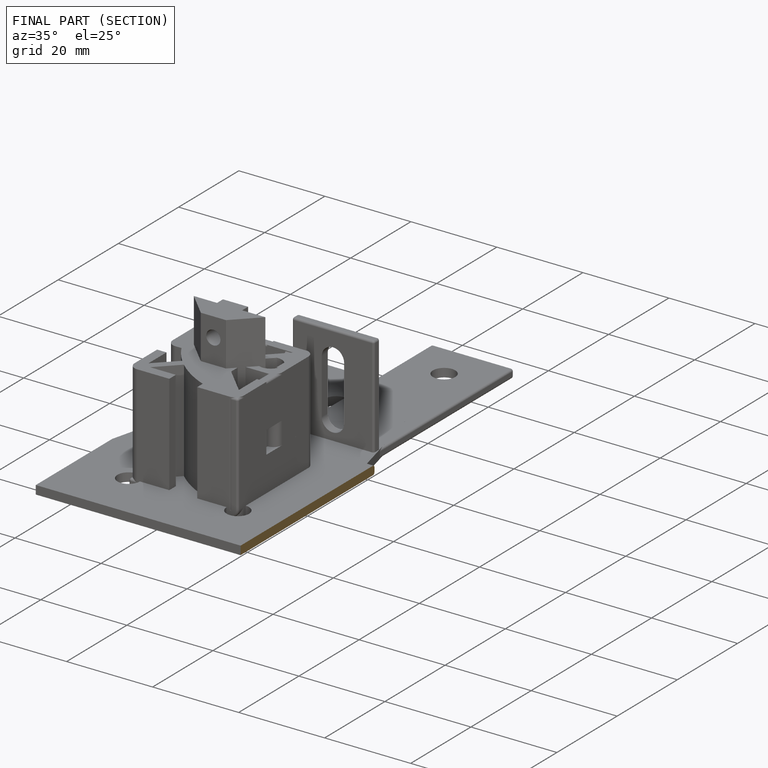
[diagram: finished part — half-section view (interior)]
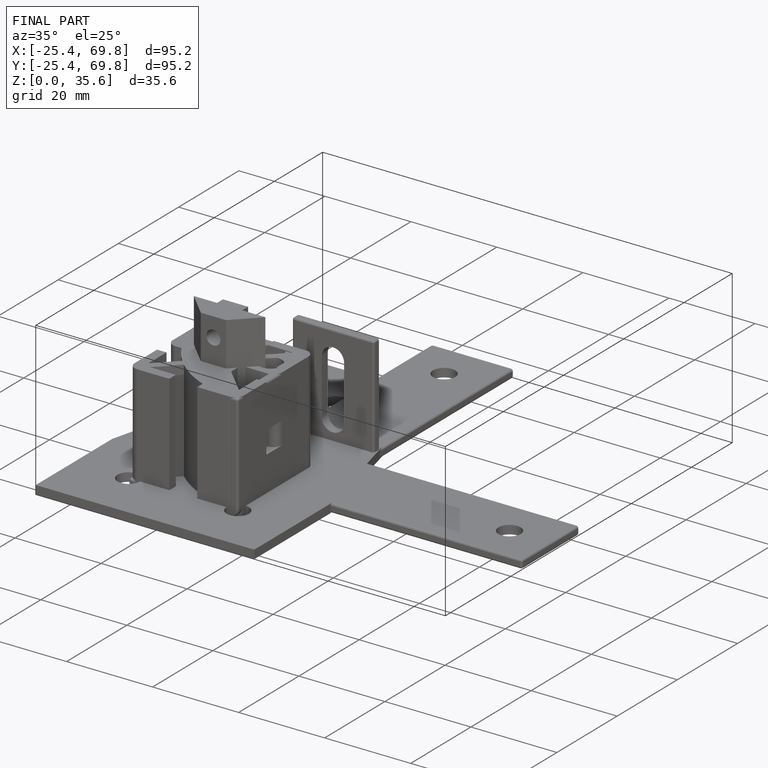
[diagram: finished part — iso view with bounding-box wireframe]
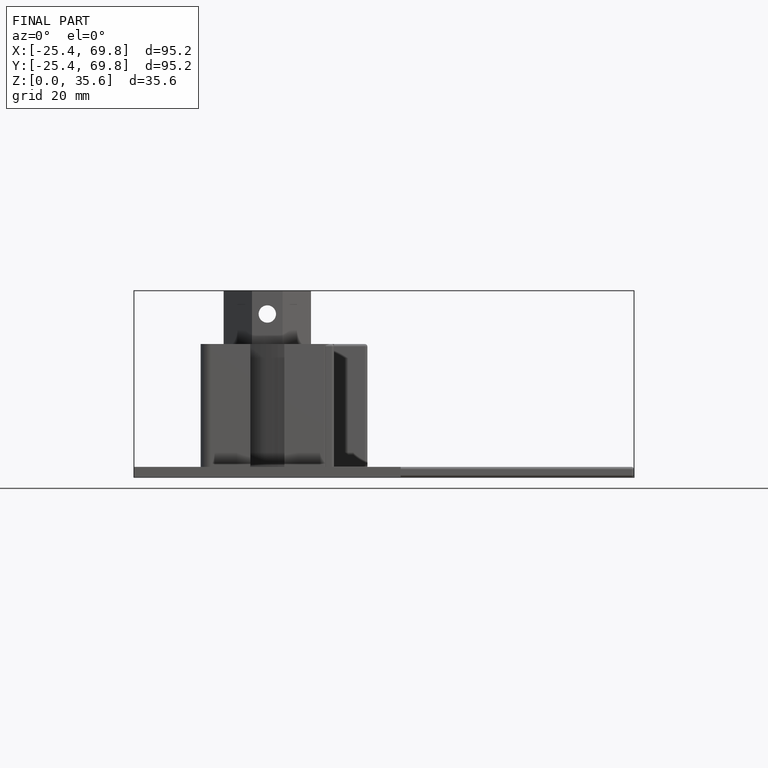
[diagram: finished part — front view with bounding-box wireframe]
